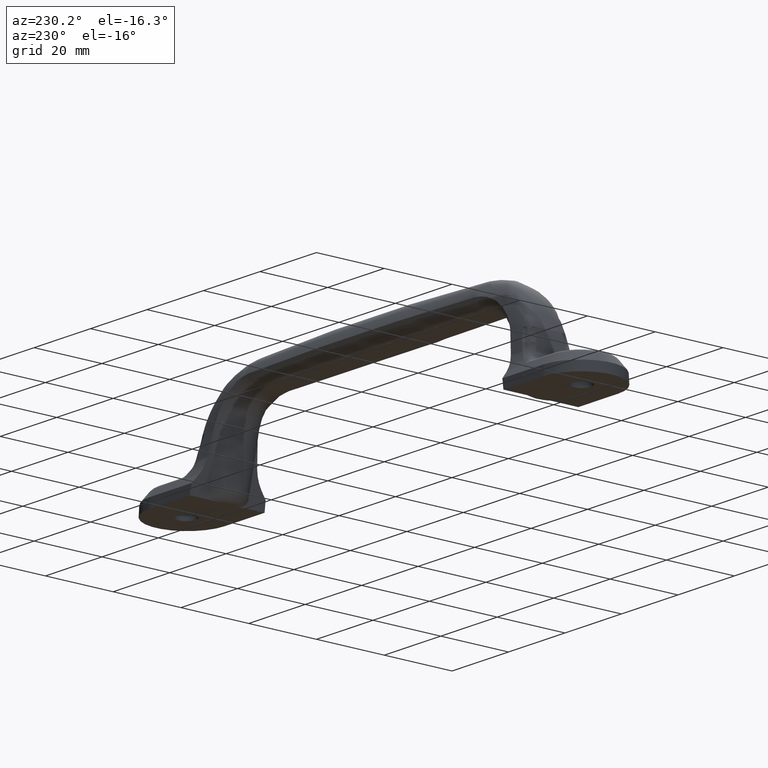
[diagram: clean part render]
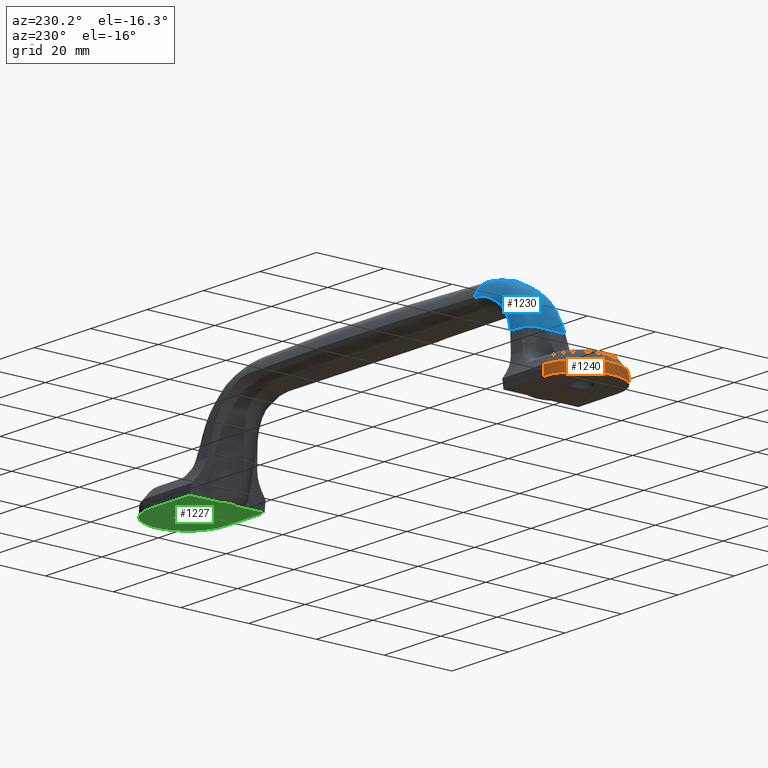
[diagram: same view with three faces highlighted in distinct colors, each labeled with its STEP entity id]
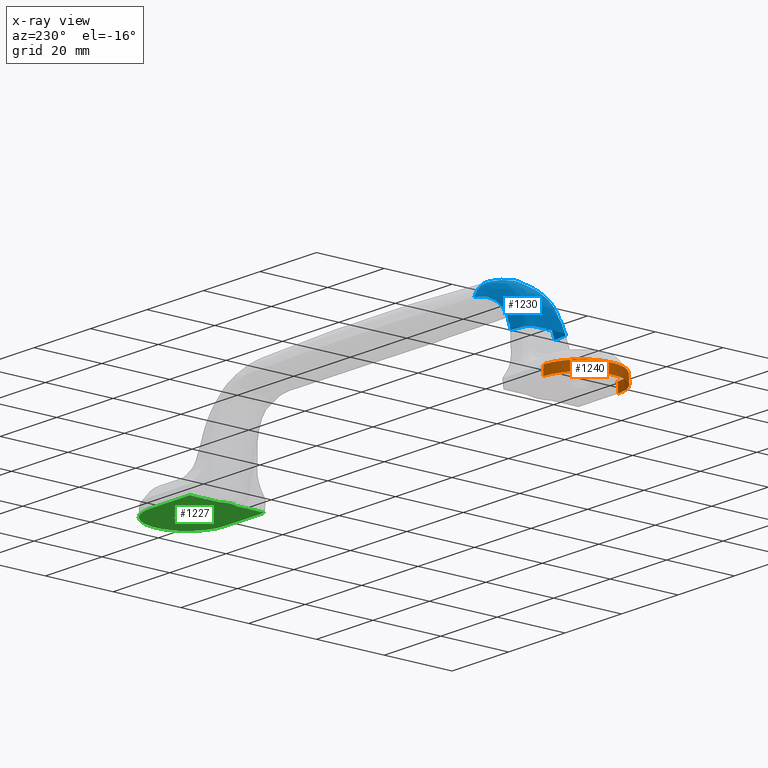
[diagram: x-ray of the same camera — body ghosted, the three highlighted faces saturated]
A machine part, auxiliary view with three faces highlighted in distinct colors.
The next image is the same camera in x-ray (body ghosted, the three faces saturated) — at least one of them is partly hidden behind the body in this view.
Their STEP definitions:

[orange] entity #1240 — the highlighted conical surface has half-angle 3 deg.
#21=CONICAL_SURFACE('',#1307,11.0351948760177,2.99999999999969);
#70=LINE('',#5444,#111);
#71=LINE('',#5446,#112);
#111=VECTOR('',#1437,2.82886280199663);
#112=VECTOR('',#1438,2.82886280199664);
#159=CIRCLE('',#1296,11.05);
#166=CIRCLE('',#1308,10.9019487601774);
#225=FACE_OUTER_BOUND('',#307,.T.);
#307=EDGE_LOOP('',(#1039,#1040,#1041,#1042));
#545=VERTEX_POINT('',#5159);
#546=VERTEX_POINT('',#5161);
#567=VERTEX_POINT('',#5443);
#568=VERTEX_POINT('',#5445);
#709=EDGE_CURVE('',#545,#546,#159,.T.);
#736=EDGE_CURVE('',#567,#546,#70,.T.);
#737=EDGE_CURVE('',#545,#568,#71,.T.);
#738=EDGE_CURVE('',#568,#567,#166,.T.);
#1039=ORIENTED_EDGE('',*,*,#736,.T.);
#1040=ORIENTED_EDGE('',*,*,#709,.F.);
#1041=ORIENTED_EDGE('',*,*,#737,.T.);
#1042=ORIENTED_EDGE('',*,*,#738,.T.);
#1240=ADVANCED_FACE('',(#225),#21,.T.);
#1296=AXIS2_PLACEMENT_3D('',#5162,#1407,#1408);
#1307=AXIS2_PLACEMENT_3D('',#5442,#1435,#1436);
#1308=AXIS2_PLACEMENT_3D('',#5447,#1439,#1440);
#1407=DIRECTION('center_axis',(0.,0.,-1.));
#1408=DIRECTION('ref_axis',(-4.82268825176536E-15,1.,0.));
#1435=DIRECTION('center_axis',(-1.09161801014799E-14,5.07292589788377E-15,
-1.));
#1436=DIRECTION('ref_axis',(-0.219512195121948,0.975609756097562,7.34543065435777E-15));
#1437=DIRECTION('',(0.,0.0523359562429452,-0.998629534754574));
#1438=DIRECTION('',(0.,0.0523359562429484,0.998629534754574));
#1439=DIRECTION('center_axis',(1.01837116376897E-16,0.,-1.));
#1440=DIRECTION('ref_axis',(-2.44409079304553E-15,1.,0.));
#5159=CARTESIAN_POINT('',(-69.6643585288094,49.0177836916921,0.));
#5161=CARTESIAN_POINT('',(-69.6643585288094,71.1177836916921,0.));
#5162=CARTESIAN_POINT('Origin',(-69.6643585288094,60.0677836916921,-7.9096954899676E-13));
#5442=CARTESIAN_POINT('Origin',(-69.6643585288094,60.0677836916921,0.28249859438416));
#5443=CARTESIAN_POINT('',(-69.6643585288094,70.9697324518695,2.82498594384241));
#5444=CARTESIAN_POINT('',(-69.6643585288094,70.9697324518695,2.82498594384241));
#5445=CARTESIAN_POINT('',(-69.6643585288094,49.1658349315147,2.82498594384242));
#5446=CARTESIAN_POINT('',(-69.6643585288094,49.0177836916921,0.));
#5447=CARTESIAN_POINT('Origin',(-69.6643585288094,60.0677836916921,2.82498594384241));

[blue] entity #1230 — the highlighted face is a freeform B-spline surface patch.
#215=FACE_OUTER_BOUND('',#293,.T.);
#293=EDGE_LOOP('',(#984,#985,#986,#987,#988,#989,#990,#991,#992,#993));
#350=B_SPLINE_CURVE_WITH_KNOTS('',3,(#2504,#2505,#2506,#2507,#2508,#2509,
#2510,#2511,#2512,#2513,#2514,#2515,#2516,#2517,#2518,#2519,#2520,#2521,
#2522,#2523,#2524,#2525,#2526,#2527,#2528,#2529,#2530,#2531,#2532,#2533,
#2534,#2535,#2536,#2537,#2538,#2539,#2540,#2541,#2542,#2543,#2544,#2545,
#2546,#2547,#2548,#2549,#2550,#2551,#2552,#2553,#2554,#2555,#2556,#2557,
#2558,#2559,#2560,#2561,#2562,#2563,#2564,#2565,#2566,#2567,#2568,#2569,
#2570,#2571,#2572,#2573,#2574,#2575,#2576,#2577,#2578,#2579,#2580,#2581,
#2582,#2583,#2584,#2585,#2586,#2587,#2588,#2589,#2590,#2591,#2592,#2593,
#2594),.UNSPECIFIED.,.F.,.F.,(4,3,3,3,3,3,3,3,3,3,3,3,3,3,3,3,3,3,3,3,3,
3,3,3,3,3,3,3,3,3,4),(-1.44370021398789,-1.26466342048277,-1.25451719783154,
-1.2421059356418,-1.17421645538692,-1.15912800481853,-1.15153691434943,
-1.08376949029108,-1.06713364534011,-1.06342626409933,-0.98785778160469,
-0.967176529007807,-0.910069343056486,-0.870912515835616,-0.752957486636548,
-0.721981629907689,-0.691957731062429,-0.573735026135915,-0.535103499457519,
-0.477364212774784,-0.457442208182294,-0.381017529608391,-0.378239689340944,
-0.360193769524304,-0.293751732951284,-0.285212509527465,-0.269746804428457,
-0.202862300105507,-0.189697550767016,-0.17929983933261,-0.000263258753689663),
 .UNSPECIFIED.);
#404=B_SPLINE_CURVE_WITH_KNOTS('',3,(#4976,#4977,#4978,#4979,#4980,#4981,
#4982,#4983,#4984,#4985,#4986,#4987,#4988,#4989,#4990,#4991,#4992,#4993),
 .UNSPECIFIED.,.F.,.F.,(4,2,2,2,2,2,2,2,4),(0.000379657717695648,0.397003810956207,
0.793631319406672,0.845008980355125,1.04315724688103,1.19160643271886,1.21927283278677,
1.32339306012027,1.61555750483882),.UNSPECIFIED.);
#405=B_SPLINE_CURVE_WITH_KNOTS('',3,(#4995,#4996,#4997,#4998),
 .UNSPECIFIED.,.F.,.F.,(4,4),(0.,0.999381949647157),.UNSPECIFIED.);
#406=B_SPLINE_CURVE_WITH_KNOTS('',3,(#5000,#5001,#5002,#5003),
 .UNSPECIFIED.,.F.,.F.,(4,4),(0.,0.994908346675726),.UNSPECIFIED.);
#407=B_SPLINE_CURVE_WITH_KNOTS('',3,(#5005,#5006,#5007,#5008,#5009,#5010,
#5011,#5012,#5013,#5014,#5015,#5016,#5017,#5018,#5019,#5020),
 .UNSPECIFIED.,.F.,.F.,(4,3,3,3,3,4),(1.28434806531561E-5,0.122025566449732,
0.5,0.516183494753885,0.898499043965891,1.),.UNSPECIFIED.);
#408=B_SPLINE_CURVE_WITH_KNOTS('',3,(#5022,#5023,#5024,#5025,#5026,#5027,
#5028,#5029,#5030,#5031,#5032,#5033,#5034,#5035,#5036,#5037),
 .UNSPECIFIED.,.F.,.F.,(4,3,3,3,3,4),(0.,0.128026603062362,0.499840964615835,
0.577241752379509,0.87169715991271,0.99999930779065),.UNSPECIFIED.);
#409=B_SPLINE_CURVE_WITH_KNOTS('',3,(#5039,#5040,#5041,#5042,#5043,#5044,
#5045,#5046,#5047,#5048,#5049,#5050,#5051,#5052,#5053,#5054),
 .UNSPECIFIED.,.F.,.F.,(4,3,3,3,3,4),(1.08871831038694E-6,0.105107203243985,
0.47665747701046,0.500000544349177,0.867528374584574,0.999981670196751),
 .UNSPECIFIED.);
#410=B_SPLINE_CURVE_WITH_KNOTS('',3,(#5056,#5057,#5058,#5059),
 .UNSPECIFIED.,.F.,.F.,(4,4),(0.00182041970305296,1.),.UNSPECIFIED.);
#411=B_SPLINE_CURVE_WITH_KNOTS('',3,(#5061,#5062,#5063,#5064,#5065,#5066,
#5067),.UNSPECIFIED.,.F.,.F.,(4,3,4),(5.56732423876787E-5,0.817674910935459,
1.),.UNSPECIFIED.);
#412=B_SPLINE_CURVE_WITH_KNOTS('',3,(#5068,#5069,#5070,#5071,#5072,#5073,
#5074,#5075,#5076,#5077,#5078,#5079,#5080,#5081,#5082,#5083,#5084,#5085,
#5086,#5087,#5088,#5089),.UNSPECIFIED.,.F.,.F.,(4,2,2,2,2,2,2,2,2,2,4),
(0.0231982437370047,0.412642088481803,0.440127194821261,0.501566139143538,
0.571577591169969,0.758403913209703,0.859207794421801,0.881253126262387,
0.925000702857521,1.25239639077821,1.57965931332014),.UNSPECIFIED.);
#460=VERTEX_POINT('',#1491);
#472=VERTEX_POINT('',#2218);
#530=VERTEX_POINT('',#4975);
#531=VERTEX_POINT('',#4994);
#532=VERTEX_POINT('',#4999);
#533=VERTEX_POINT('',#5004);
#534=VERTEX_POINT('',#5021);
#535=VERTEX_POINT('',#5038);
#536=VERTEX_POINT('',#5055);
#537=VERTEX_POINT('',#5060);
#606=EDGE_CURVE('',#472,#460,#350,.T.);
#693=EDGE_CURVE('',#530,#460,#404,.T.);
#694=EDGE_CURVE('',#531,#530,#405,.T.);
#695=EDGE_CURVE('',#532,#531,#406,.T.);
#696=EDGE_CURVE('',#533,#532,#407,.T.);
#697=EDGE_CURVE('',#534,#533,#408,.T.);
#698=EDGE_CURVE('',#535,#534,#409,.T.);
#699=EDGE_CURVE('',#536,#535,#410,.T.);
#700=EDGE_CURVE('',#537,#536,#411,.T.);
#701=EDGE_CURVE('',#472,#537,#412,.T.);
#984=ORIENTED_EDGE('',*,*,#606,.T.);
#985=ORIENTED_EDGE('',*,*,#693,.F.);
#986=ORIENTED_EDGE('',*,*,#694,.F.);
#987=ORIENTED_EDGE('',*,*,#695,.F.);
#988=ORIENTED_EDGE('',*,*,#696,.F.);
#989=ORIENTED_EDGE('',*,*,#697,.F.);
#990=ORIENTED_EDGE('',*,*,#698,.F.);
#991=ORIENTED_EDGE('',*,*,#699,.F.);
#992=ORIENTED_EDGE('',*,*,#700,.F.);
#993=ORIENTED_EDGE('',*,*,#701,.F.);
#1180=B_SPLINE_SURFACE_WITH_KNOTS('',3,3,((#4494,#4495,#4496,#4497,#4498,
#4499,#4500,#4501,#4502,#4503,#4504,#4505,#4506,#4507,#4508,#4509,#4510,
#4511,#4512,#4513,#4514,#4515,#4516,#4517,#4518,#4519,#4520,#4521,#4522,
#4523,#4524,#4525,#4526,#4527,#4528,#4529,#4530),(#4531,#4532,#4533,#4534,
#4535,#4536,#4537,#4538,#4539,#4540,#4541,#4542,#4543,#4544,#4545,#4546,
#4547,#4548,#4549,#4550,#4551,#4552,#4553,#4554,#4555,#4556,#4557,#4558,
#4559,#4560,#4561,#4562,#4563,#4564,#4565,#4566,#4567),(#4568,#4569,#4570,
#4571,#4572,#4573,#4574,#4575,#4576,#4577,#4578,#4579,#4580,#4581,#4582,
#4583,#4584,#4585,#4586,#4587,#4588,#4589,#4590,#4591,#4592,#4593,#4594,
#4595,#4596,#4597,#4598,#4599,#4600,#4601,#4602,#4603,#4604),(#4605,#4606,
#4607,#4608,#4609,#4610,#4611,#4612,#4613,#4614,#4615,#4616,#4617,#4618,
#4619,#4620,#4621,#4622,#4623,#4624,#4625,#4626,#4627,#4628,#4629,#4630,
#4631,#4632,#4633,#4634,#4635,#4636,#4637,#4638,#4639,#4640,#4641),(#4642,
#4643,#4644,#4645,#4646,#4647,#4648,#4649,#4650,#4651,#4652,#4653,#4654,
#4655,#4656,#4657,#4658,#4659,#4660,#4661,#4662,#4663,#4664,#4665,#4666,
#4667,#4668,#4669,#4670,#4671,#4672,#4673,#4674,#4675,#4676,#4677,#4678),
(#4679,#4680,#4681,#4682,#4683,#4684,#4685,#4686,#4687,#4688,#4689,#4690,
#4691,#4692,#4693,#4694,#4695,#4696,#4697,#4698,#4699,#4700,#4701,#4702,
#4703,#4704,#4705,#4706,#4707,#4708,#4709,#4710,#4711,#4712,#4713,#4714,
#4715),(#4716,#4717,#4718,#4719,#4720,#4721,#4722,#4723,#4724,#4725,#4726,
#4727,#4728,#4729,#4730,#4731,#4732,#4733,#4734,#4735,#4736,#4737,#4738,
#4739,#4740,#4741,#4742,#4743,#4744,#4745,#4746,#4747,#4748,#4749,#4750,
#4751,#4752),(#4753,#4754,#4755,#4756,#4757,#4758,#4759,#4760,#4761,#4762,
#4763,#4764,#4765,#4766,#4767,#4768,#4769,#4770,#4771,#4772,#4773,#4774,
#4775,#4776,#4777,#4778,#4779,#4780,#4781,#4782,#4783,#4784,#4785,#4786,
#4787,#4788,#4789),(#4790,#4791,#4792,#4793,#4794,#4795,#4796,#4797,#4798,
#4799,#4800,#4801,#4802,#4803,#4804,#4805,#4806,#4807,#4808,#4809,#4810,
#4811,#4812,#4813,#4814,#4815,#4816,#4817,#4818,#4819,#4820,#4821,#4822,
#4823,#4824,#4825,#4826),(#4827,#4828,#4829,#4830,#4831,#4832,#4833,#4834,
#4835,#4836,#4837,#4838,#4839,#4840,#4841,#4842,#4843,#4844,#4845,#4846,
#4847,#4848,#4849,#4850,#4851,#4852,#4853,#4854,#4855,#4856,#4857,#4858,
#4859,#4860,#4861,#4862,#4863),(#4864,#4865,#4866,#4867,#4868,#4869,#4870,
#4871,#4872,#4873,#4874,#4875,#4876,#4877,#4878,#4879,#4880,#4881,#4882,
#4883,#4884,#4885,#4886,#4887,#4888,#4889,#4890,#4891,#4892,#4893,#4894,
#4895,#4896,#4897,#4898,#4899,#4900),(#4901,#4902,#4903,#4904,#4905,#4906,
#4907,#4908,#4909,#4910,#4911,#4912,#4913,#4914,#4915,#4916,#4917,#4918,
#4919,#4920,#4921,#4922,#4923,#4924,#4925,#4926,#4927,#4928,#4929,#4930,
#4931,#4932,#4933,#4934,#4935,#4936,#4937),(#4938,#4939,#4940,#4941,#4942,
#4943,#4944,#4945,#4946,#4947,#4948,#4949,#4950,#4951,#4952,#4953,#4954,
#4955,#4956,#4957,#4958,#4959,#4960,#4961,#4962,#4963,#4964,#4965,#4966,
#4967,#4968,#4969,#4970,#4971,#4972,#4973,#4974)),.UNSPECIFIED.,.F.,.F.,
 .F.,(4,3,3,3,4),(4,3,3,3,3,3,3,3,3,3,3,3,4),(-5.30205648906934E-6,0.25,
0.5,0.75,1.),(-1.68670465282649E-6,0.125,0.1875,0.25,0.3125,0.375,0.5,0.625,
0.6875,0.75,0.8125,0.875,1.00000168596866),.UNSPECIFIED.);
#1230=ADVANCED_FACE('',(#215),#1180,.F.);
#1491=CARTESIAN_POINT('',(-40.000000015354,66.7435429460592,26.0890724851359));
#2218=CARTESIAN_POINT('',(-40.0000000328284,53.391963930679,26.0888706088555));
#2504=CARTESIAN_POINT('Ctrl Pts',(-40.,53.3919639266323,26.0888706100543));
#2505=CARTESIAN_POINT('Ctrl Pts',(-40.,53.5901365530062,26.7578272774817));
#2506=CARTESIAN_POINT('Ctrl Pts',(-40.0000000000046,53.8897053579553,27.3969271357917));
#2507=CARTESIAN_POINT('Ctrl Pts',(-40.0000000000054,54.2768604178932,27.9772112776857));
#2508=CARTESIAN_POINT('Ctrl Pts',(-40.0000000000054,54.2988009439816,28.0100966527495));
#2509=CARTESIAN_POINT('Ctrl Pts',(-40.0000000000054,54.3210230036573,28.0427935253999));
#2510=CARTESIAN_POINT('Ctrl Pts',(-40.0000000000054,54.3435233947199,28.0752955886571));
#2511=CARTESIAN_POINT('Ctrl Pts',(-40.0000000000054,54.3710467659733,28.1150534022453));
#2512=CARTESIAN_POINT('Ctrl Pts',(-40.0000000000054,54.3989859650305,28.154520764194));
#2513=CARTESIAN_POINT('Ctrl Pts',(-40.0000000000055,54.4273337379547,28.1936896889359));
#2514=CARTESIAN_POINT('Ctrl Pts',(-40.0000000000055,54.5823957728055,28.4079433161836));
#2515=CARTESIAN_POINT('Ctrl Pts',(-40.000000000006,54.74969858272,28.6132566722467));
#2516=CARTESIAN_POINT('Ctrl Pts',(-40.0000000000061,54.9280330311987,28.8083989510367));
#2517=CARTESIAN_POINT('Ctrl Pts',(-40.0000000000061,54.9676678980501,28.8517693615373));
#2518=CARTESIAN_POINT('Ctrl Pts',(-40.0000000000062,55.0078469760107,28.8946378622047));
#2519=CARTESIAN_POINT('Ctrl Pts',(-40.0000000000062,55.0485563595734,28.9369912403526));
#2520=CARTESIAN_POINT('Ctrl Pts',(-40.0000000000062,55.0690374959343,28.9582994803031));
#2521=CARTESIAN_POINT('Ctrl Pts',(-40.0000000000062,55.0896530862389,28.9794773025163));
#2522=CARTESIAN_POINT('Ctrl Pts',(-40.0000000000062,55.1104011492109,29.0005225979029));
#2523=CARTESIAN_POINT('Ctrl Pts',(-40.0000000000062,55.2956239162873,29.1883988276353));
#2524=CARTESIAN_POINT('Ctrl Pts',(-40.0000000000066,55.4914155901646,29.3657255106837));
#2525=CARTESIAN_POINT('Ctrl Pts',(-40.0000000000067,55.6965786163231,29.5312839312931));
#2526=CARTESIAN_POINT('Ctrl Pts',(-40.0000000000068,55.7469429372379,29.57192593966));
#2527=CARTESIAN_POINT('Ctrl Pts',(-40.0000000000068,55.7978780935506,29.6118632292596));
#2528=CARTESIAN_POINT('Ctrl Pts',(-40.0000000000068,55.8493376549816,29.6510563239898));
#2529=CARTESIAN_POINT('Ctrl Pts',(-40.0000000000068,55.8608056755883,29.6597907011495));
#2530=CARTESIAN_POINT('Ctrl Pts',(-40.0000000000068,55.8722998968697,29.6684883861118));
#2531=CARTESIAN_POINT('Ctrl Pts',(-40.0000000000068,55.8838201175576,29.6771488131517));
#2532=CARTESIAN_POINT('Ctrl Pts',(-40.0000000000066,56.11863966776,29.8536764715335));
#2533=CARTESIAN_POINT('Ctrl Pts',(-40.0000000000058,56.3642462683382,30.0148590149211));
#2534=CARTESIAN_POINT('Ctrl Pts',(-40.0000000000057,56.6189542156624,30.1600315095781));
#2535=CARTESIAN_POINT('Ctrl Pts',(-40.0000000000056,56.6886615754393,30.1997616845533));
#2536=CARTESIAN_POINT('Ctrl Pts',(-40.0000000000056,56.7590530087051,30.2382905554575));
#2537=CARTESIAN_POINT('Ctrl Pts',(-40.0000000000056,56.8300941377731,30.2755981050489));
#2538=CARTESIAN_POINT('Ctrl Pts',(-40.0000000000055,57.0262601557098,30.3786155195854));
#2539=CARTESIAN_POINT('Ctrl Pts',(-40.0000000000053,57.2273897975687,30.4723387680696));
#2540=CARTESIAN_POINT('Ctrl Pts',(-40.0000000000053,57.4327919289685,30.556364170744));
#2541=CARTESIAN_POINT('Ctrl Pts',(-40.0000000000052,57.5736305228519,30.6139780790442));
#2542=CARTESIAN_POINT('Ctrl Pts',(-40.0000000000052,57.7166775450554,30.6670959286636));
#2543=CARTESIAN_POINT('Ctrl Pts',(-40.0000000000052,57.8611009643677,30.7153350775637));
#2544=CARTESIAN_POINT('Ctrl Pts',(-40.0000000000052,58.2961583949892,30.8606494613095));
#2545=CARTESIAN_POINT('Ctrl Pts',(-40.0000000000054,58.7560560412728,30.968089380066));
#2546=CARTESIAN_POINT('Ctrl Pts',(-40.0000000000055,59.2591376868079,31.0269432011877));
#2547=CARTESIAN_POINT('Ctrl Pts',(-40.0000000000055,59.3912506207017,31.0423986467367));
#2548=CARTESIAN_POINT('Ctrl Pts',(-40.0000000000055,59.5263416361631,31.0545034678803));
#2549=CARTESIAN_POINT('Ctrl Pts',(-40.0000000000056,59.6633040942005,31.0624602789912));
#2550=CARTESIAN_POINT('Ctrl Pts',(-40.0000000000056,59.7960573872477,31.0701725593655));
#2551=CARTESIAN_POINT('Ctrl Pts',(-40.0000000000056,59.9306723244924,31.0744344527089));
#2552=CARTESIAN_POINT('Ctrl Pts',(-40.0000000000057,60.06781828632,31.0743877728217));
#2553=CARTESIAN_POINT('Ctrl Pts',(-40.0000000000062,60.6078469701549,31.0742039651636));
#2554=CARTESIAN_POINT('Ctrl Pts',(-40.0000000000081,61.1871188139279,31.0072163700006));
#2555=CARTESIAN_POINT('Ctrl Pts',(-40.0000000000087,61.7392984309186,30.870621046018));
#2556=CARTESIAN_POINT('Ctrl Pts',(-40.0000000000089,61.9197336664201,30.8259859151787));
#2557=CARTESIAN_POINT('Ctrl Pts',(-40.0000000000091,62.0982677224201,30.7743007128354));
#2558=CARTESIAN_POINT('Ctrl Pts',(-40.0000000000092,62.2744675730362,30.7154322903309));
#2559=CARTESIAN_POINT('Ctrl Pts',(-40.0000000000095,62.5378186379028,30.6274466212207));
#2560=CARTESIAN_POINT('Ctrl Pts',(-40.0000000000103,62.7959642223478,30.5235676715103));
#2561=CARTESIAN_POINT('Ctrl Pts',(-40.0000000000105,63.0475973640082,30.4043954382455));
#2562=CARTESIAN_POINT('Ctrl Pts',(-40.0000000000106,63.1344192991548,30.3632769916072));
#2563=CARTESIAN_POINT('Ctrl Pts',(-40.0000000000107,63.2204309452924,30.3203534767426));
#2564=CARTESIAN_POINT('Ctrl Pts',(-40.0000000000108,63.3056932125908,30.2755762790096));
#2565=CARTESIAN_POINT('Ctrl Pts',(-40.0000000000113,63.6327758283242,30.1038022525409));
#2566=CARTESIAN_POINT('Ctrl Pts',(-40.0000000000137,63.940548547102,29.9085935856205));
#2567=CARTESIAN_POINT('Ctrl Pts',(-40.0000000000141,64.2210012804815,29.7001342188947));
#2568=CARTESIAN_POINT('Ctrl Pts',(-40.0000000000142,64.2311950151551,29.6925572577112));
#2569=CARTESIAN_POINT('Ctrl Pts',(-40.0000000000142,64.241366325677,29.6849552846069));
#2570=CARTESIAN_POINT('Ctrl Pts',(-40.0000000000141,64.2515006051919,29.6773364460094));
#2571=CARTESIAN_POINT('Ctrl Pts',(-40.0000000000141,64.3173367865112,29.627841537307));
#2572=CARTESIAN_POINT('Ctrl Pts',(-40.0000000000139,64.3817976414622,29.5775360128102));
#2573=CARTESIAN_POINT('Ctrl Pts',(-40.0000000000137,64.4448908745504,29.52650358311));
#2574=CARTESIAN_POINT('Ctrl Pts',(-40.0000000000129,64.6771895294789,29.3386107743754));
#2575=CARTESIAN_POINT('Ctrl Pts',(-40.0000000000096,64.8910018703791,29.1408657204519));
#2576=CARTESIAN_POINT('Ctrl Pts',(-40.000000000009,65.0868255788591,28.9371325242608));
#2577=CARTESIAN_POINT('Ctrl Pts',(-40.0000000000089,65.1119931156271,28.910948449075));
#2578=CARTESIAN_POINT('Ctrl Pts',(-40.0000000000089,65.1368632955321,28.8846657143189));
#2579=CARTESIAN_POINT('Ctrl Pts',(-40.0000000000089,65.1614380421208,28.8582916890806));
#2580=CARTESIAN_POINT('Ctrl Pts',(-40.0000000000088,65.2059462795518,28.8105247111759));
#2581=CARTESIAN_POINT('Ctrl Pts',(-40.0000000000088,65.2494864158594,28.7624572702244));
#2582=CARTESIAN_POINT('Ctrl Pts',(-40.0000000000087,65.292058306436,28.714139745623));
#2583=CARTESIAN_POINT('Ctrl Pts',(-40.0000000000083,65.4761688776049,28.505181042325));
#2584=CARTESIAN_POINT('Ctrl Pts',(-40.0000000000069,65.6420083549205,28.2919084736208));
#2585=CARTESIAN_POINT('Ctrl Pts',(-40.0000000000066,65.7918861844952,28.0754226401635));
#2586=CARTESIAN_POINT('Ctrl Pts',(-40.0000000000065,65.8213863516523,28.0328121467219));
#2587=CARTESIAN_POINT('Ctrl Pts',(-40.0000000000065,65.8502532666592,27.9900876258831));
#2588=CARTESIAN_POINT('Ctrl Pts',(-40.0000000000065,65.8785036536855,27.9472636962789));
#2589=CARTESIAN_POINT('Ctrl Pts',(-40.0000000000065,65.900816222247,27.9134407307926));
#2590=CARTESIAN_POINT('Ctrl Pts',(-40.0000000000065,65.9227428175446,27.8795568117644));
#2591=CARTESIAN_POINT('Ctrl Pts',(-40.0000000000064,65.9442897977415,27.8456195836975));
#2592=CARTESIAN_POINT('Ctrl Pts',(-40.0000000000055,66.3153039079708,27.2612597170335));
#2593=CARTESIAN_POINT('Ctrl Pts',(-40.,66.5739695424899,26.6614209627845));
#2594=CARTESIAN_POINT('Ctrl Pts',(-40.,66.7435429479518,26.0890724856966));
#4494=CARTESIAN_POINT('Ctrl Pts',(-39.7683716616708,53.3716368589935,26.0704224614619));
#4495=CARTESIAN_POINT('Ctrl Pts',(-39.7685487574733,53.5818275299873,26.7877963195905));
#4496=CARTESIAN_POINT('Ctrl Pts',(-39.7687140717696,53.9084344898124,27.4713058069426));
#4497=CARTESIAN_POINT('Ctrl Pts',(-39.768866120566,54.3344863090731,28.0854941321717));
#4498=CARTESIAN_POINT('Ctrl Pts',(-39.7689421439384,54.547509344248,28.3925841510251));
#4499=CARTESIAN_POINT('Ctrl Pts',(-39.769015131888,54.785468710618,28.6824687763125));
#4500=CARTESIAN_POINT('Ctrl Pts',(-39.7690786435167,55.0449625157352,28.9515908557046));
#4501=CARTESIAN_POINT('Ctrl Pts',(-39.7691421551454,55.3044563208522,29.2207129350965));
#4502=CARTESIAN_POINT('Ctrl Pts',(-39.7692095150257,55.5854835938917,29.4690705080384));
#4503=CARTESIAN_POINT('Ctrl Pts',(-39.7692612601076,55.8846168326531,29.6931319710033));
#4504=CARTESIAN_POINT('Ctrl Pts',(-39.7693130051895,56.1837500714144,29.9171934339681));
#4505=CARTESIAN_POINT('Ctrl Pts',(-39.769368477813,56.5011079789817,30.1170464926288));
#4506=CARTESIAN_POINT('Ctrl Pts',(-39.7694130018374,56.8323380887093,30.2903972701242));
#4507=CARTESIAN_POINT('Ctrl Pts',(-39.7694575258618,57.1635681984368,30.4637480476195));
#4508=CARTESIAN_POINT('Ctrl Pts',(-39.7694944763611,57.5086690128382,30.6105955652366));
#4509=CARTESIAN_POINT('Ctrl Pts',(-39.7695248644452,57.8632721200192,30.7286762935071));
#4510=CARTESIAN_POINT('Ctrl Pts',(-39.7695856406138,58.5724783343812,30.964837750048));
#4511=CARTESIAN_POINT('Ctrl Pts',(-39.7696140564573,59.3202568060726,31.0860828297621));
#4512=CARTESIAN_POINT('Ctrl Pts',(-39.7696139862228,60.067745683585,31.0860868680366));
#4513=CARTESIAN_POINT('Ctrl Pts',(-39.7696139159884,60.8152345610974,31.0860909063113));
#4514=CARTESIAN_POINT('Ctrl Pts',(-39.7695853138396,61.5630168557589,30.9648539049986));
#4515=CARTESIAN_POINT('Ctrl Pts',(-39.7695246090244,62.2722293602344,30.7286982379751));
#4516=CARTESIAN_POINT('Ctrl Pts',(-39.7694942566167,62.6268356124723,30.6106204044633));
#4517=CARTESIAN_POINT('Ctrl Pts',(-39.769456168106,62.9719401993631,30.4637752489109));
#4518=CARTESIAN_POINT('Ctrl Pts',(-39.7694120743809,63.3031744033501,30.2904260373927));
#4519=CARTESIAN_POINT('Ctrl Pts',(-39.7693679806559,63.6344086073371,30.1170768258744));
#4520=CARTESIAN_POINT('Ctrl Pts',(-39.7693163054699,63.9517708664098,29.91722449173));
#4521=CARTESIAN_POINT('Ctrl Pts',(-39.7692623012916,64.250908703854,29.6931632283192));
#4522=CARTESIAN_POINT('Ctrl Pts',(-39.7692082971133,64.5500465412982,29.4691019649085));
#4523=CARTESIAN_POINT('Ctrl Pts',(-39.7691440334323,64.8310783098142,29.2207435959169));
#4524=CARTESIAN_POINT('Ctrl Pts',(-39.7690780308278,65.0905766063038,28.9516201868563));
#4525=CARTESIAN_POINT('Ctrl Pts',(-39.7690120282234,65.3500749027933,28.6824967777957));
#4526=CARTESIAN_POINT('Ctrl Pts',(-39.7689407571831,65.5880384305133,28.3926099053682));
#4527=CARTESIAN_POINT('Ctrl Pts',(-39.7688651072421,65.801065214822,28.0855170704837));
#4528=CARTESIAN_POINT('Ctrl Pts',(-39.7687138053194,66.2271245299432,27.4713231167324));
#4529=CARTESIAN_POINT('Ctrl Pts',(-39.7685478270489,66.5537372312783,26.7878054251399));
#4530=CARTESIAN_POINT('Ctrl Pts',(-39.768371230454,66.7639305436654,26.0704224512521));
#4531=CARTESIAN_POINT('Ctrl Pts',(-41.2618212239999,53.461819776338,26.0644368495811));
#4532=CARTESIAN_POINT('Ctrl Pts',(-41.3723903529183,53.6751175965082,26.7710764603613));
#4533=CARTESIAN_POINT('Ctrl Pts',(-41.4790287528721,53.9987283327947,27.4310691990184));
#4534=CARTESIAN_POINT('Ctrl Pts',(-41.5818550764931,54.4057453829456,28.0160254344731));
#4535=CARTESIAN_POINT('Ctrl Pts',(-41.6332675445624,54.6092511619878,28.3084996056602));
#4536=CARTESIAN_POINT('Ctrl Pts',(-41.6845351561407,54.8321135121599,28.5808497939678));
#4537=CARTESIAN_POINT('Ctrl Pts',(-41.7329519867519,55.0762884943844,28.8369395069416));
#4538=CARTESIAN_POINT('Ctrl Pts',(-41.7813688173632,55.320463476609,29.0930292199154));
#4539=CARTESIAN_POINT('Ctrl Pts',(-41.826025789486,55.5880825845179,29.3348952944312));
#4540=CARTESIAN_POINT('Ctrl Pts',(-41.8614104435928,55.8785147309425,29.5574017724472));
#4541=CARTESIAN_POINT('Ctrl Pts',(-41.8967950976997,56.1689468773671,29.7799082504633));
#4542=CARTESIAN_POINT('Ctrl Pts',(-41.9229318706352,56.4823975713395,29.9831968959533));
#4543=CARTESIAN_POINT('Ctrl Pts',(-41.9358161105913,56.8123802949987,30.1609307306148));
#4544=CARTESIAN_POINT('Ctrl Pts',(-41.9487003505474,57.1423630186578,30.3386645652764));
#4545=CARTESIAN_POINT('Ctrl Pts',(-41.9514182938695,57.4885869154431,30.4906994710992));
#4546=CARTESIAN_POINT('Ctrl Pts',(-41.9560563629801,57.8447794106529,30.6128395570645));
#4547=CARTESIAN_POINT('Ctrl Pts',(-41.9653325012015,58.5571644010724,30.8571197289953));
#4548=CARTESIAN_POINT('Ctrl Pts',(-41.9700086026081,59.3126379420953,30.9832616750507));
#4549=CARTESIAN_POINT('Ctrl Pts',(-41.9700082306512,60.0677450878781,30.9832644159517));
#4550=CARTESIAN_POINT('Ctrl Pts',(-41.9700078586942,60.822852233661,30.9832671568526));
#4551=CARTESIAN_POINT('Ctrl Pts',(-41.9653309694533,61.5783261287496,30.8571307336521));
#4552=CARTESIAN_POINT('Ctrl Pts',(-41.956055450381,62.2907208091914,30.6128569002552));
#4553=CARTESIAN_POINT('Ctrl Pts',(-41.9514176908449,62.6469181494122,30.4907199835568));
#4554=CARTESIAN_POINT('Ctrl Pts',(-41.9486963810141,62.9931102170754,30.3386787964057));
#4555=CARTESIAN_POINT('Ctrl Pts',(-41.9358110549154,63.3231178413518,30.1609463341632));
#4556=CARTESIAN_POINT('Ctrl Pts',(-41.9229257288165,63.6531254656281,29.9832138719207));
#4557=CARTESIAN_POINT('Ctrl Pts',(-41.8967963516264,63.9666559713774,29.7799631062644));
#4558=CARTESIAN_POINT('Ctrl Pts',(-41.8614132515222,64.2570382172003,29.5574392178354));
#4559=CARTESIAN_POINT('Ctrl Pts',(-41.826030151418,64.5474204630233,29.3349153294063));
#4560=CARTESIAN_POINT('Ctrl Pts',(-41.781354537702,64.8150223215521,29.0931596752512));
#4561=CARTESIAN_POINT('Ctrl Pts',(-41.7329401404664,65.0592148664181,28.8369906914869));
#4562=CARTESIAN_POINT('Ctrl Pts',(-41.6845257432307,65.3034074112841,28.5808217077227));
#4563=CARTESIAN_POINT('Ctrl Pts',(-41.6332579479993,65.5262620890407,28.3085320269778));
#4564=CARTESIAN_POINT('Ctrl Pts',(-41.5818480468147,65.7297858220396,28.016047518355));
#4565=CARTESIAN_POINT('Ctrl Pts',(-41.4790268576376,66.1368387781914,27.4310706111942));
#4566=CARTESIAN_POINT('Ctrl Pts',(-41.3723860859306,66.4604323932218,26.7710880328293));
#4567=CARTESIAN_POINT('Ctrl Pts',(-41.2618193175498,66.6737420725512,26.0644341871096));
#4568=CARTESIAN_POINT('Ctrl Pts',(-42.7474304661457,53.5580055333082,25.8120842374912));
#4569=CARTESIAN_POINT('Ctrl Pts',(-42.9649102441176,53.7738411152646,26.50590426398));
#4570=CARTESIAN_POINT('Ctrl Pts',(-43.1761466401574,54.0888195516359,27.1450900536631));
#4571=CARTESIAN_POINT('Ctrl Pts',(-43.3800622890817,54.4722903578458,27.7063244105564));
#4572=CARTESIAN_POINT('Ctrl Pts',(-43.4820187377805,54.6640231737777,27.9869378025078));
#4573=CARTESIAN_POINT('Ctrl Pts',(-43.5840260422058,54.8706777891673,28.2464843612269));
#4574=CARTESIAN_POINT('Ctrl Pts',(-43.6782989155575,55.0949651128975,28.4911068286489));
#4575=CARTESIAN_POINT('Ctrl Pts',(-43.7725717889094,55.3192524366278,28.7357292960709));
#4576=CARTESIAN_POINT('Ctrl Pts',(-43.8610161421912,55.5712353383769,28.9702293605513));
#4577=CARTESIAN_POINT('Ctrl Pts',(-43.9335251881387,55.8529711830109,29.1887412534403));
#4578=CARTESIAN_POINT('Ctrl Pts',(-44.0060342340861,56.1347070276447,29.4072531463291));
#4579=CARTESIAN_POINT('Ctrl Pts',(-44.0626825197437,56.4465193311514,29.6099949596071));
#4580=CARTESIAN_POINT('Ctrl Pts',(-44.0907458564141,56.7789475488803,29.7873454914277));
#4581=CARTESIAN_POINT('Ctrl Pts',(-44.1188091930845,57.1113757666092,29.9646960232483));
#4582=CARTESIAN_POINT('Ctrl Pts',(-44.1219154087555,57.4629534233617,30.1165041323379));
#4583=CARTESIAN_POINT('Ctrl Pts',(-44.1273946302912,57.8224592843559,30.2380706739404));
#4584=CARTESIAN_POINT('Ctrl Pts',(-44.1383530733626,58.5414710063444,30.4812037571454));
#4585=CARTESIAN_POINT('Ctrl Pts',(-44.1449371149893,59.3048183364545,30.6073461048211));
#4586=CARTESIAN_POINT('Ctrl Pts',(-44.1449362550991,60.0677453547038,30.6073543936151));
#4587=CARTESIAN_POINT('Ctrl Pts',(-44.1449353952087,60.8306723729531,30.607362682409));
#4588=CARTESIAN_POINT('Ctrl Pts',(-44.1383495602956,61.5940146263587,30.4812370720391));
#4589=CARTESIAN_POINT('Ctrl Pts',(-44.1273811936234,62.3130441143345,30.2381210061497));
#4590=CARTESIAN_POINT('Ctrl Pts',(-44.1218970102872,62.6725588583225,30.116562973205));
#4591=CARTESIAN_POINT('Ctrl Pts',(-44.118838783026,63.0240465291379,29.9647603901784));
#4592=CARTESIAN_POINT('Ctrl Pts',(-44.0907475932571,63.356528449914,29.7874120389547));
#4593=CARTESIAN_POINT('Ctrl Pts',(-44.0626564034882,63.68901037069,29.6100636877312));
#4594=CARTESIAN_POINT('Ctrl Pts',(-44.0058610724932,64.0010542763147,29.4073549403323));
#4595=CARTESIAN_POINT('Ctrl Pts',(-43.9334275570086,64.2826342483969,29.1888423559746));
#4596=CARTESIAN_POINT('Ctrl Pts',(-43.8609940415241,64.5642142204792,28.970329771617));
#4597=CARTESIAN_POINT('Ctrl Pts',(-43.7724810367654,64.8158498918824,28.7365261199846));
#4598=CARTESIAN_POINT('Ctrl Pts',(-43.6783762081276,65.0403260358116,28.4913148730548));
#4599=CARTESIAN_POINT('Ctrl Pts',(-43.5842713794896,65.2648021797408,28.2461036261251));
#4600=CARTESIAN_POINT('Ctrl Pts',(-43.4822808789038,65.4712316163783,27.9870869632939));
#4601=CARTESIAN_POINT('Ctrl Pts',(-43.3801757141108,65.6631190106306,27.706455004336));
#4602=CARTESIAN_POINT('Ctrl Pts',(-43.1759626301869,66.0468989753932,27.1451835162331));
#4603=CARTESIAN_POINT('Ctrl Pts',(-42.964960167346,66.3616355598593,26.506075957692));
#4604=CARTESIAN_POINT('Ctrl Pts',(-42.7474132001313,66.5775568104478,25.8122194110112));
#4605=CARTESIAN_POINT('Ctrl Pts',(-44.1503064670999,53.6526837227075,25.3104297858341));
#4606=CARTESIAN_POINT('Ctrl Pts',(-44.4718521476557,53.8681093227182,25.9768991687094));
#4607=CARTESIAN_POINT('Ctrl Pts',(-44.7846599520576,54.1692298263252,26.5857272287401));
#4608=CARTESIAN_POINT('Ctrl Pts',(-45.0867977351872,54.5257428764752,27.1172688868394));
#4609=CARTESIAN_POINT('Ctrl Pts',(-45.2378645883108,54.7039969962538,27.3830361297223));
#4610=CARTESIAN_POINT('Ctrl Pts',(-45.3898291556636,54.893083426967,27.6286016727797));
#4611=CARTESIAN_POINT('Ctrl Pts',(-45.5273851434241,55.0963196703569,27.8585027045779));
#4612=CARTESIAN_POINT('Ctrl Pts',(-45.6649411311846,55.2995559137469,28.0884037363761));
#4613=CARTESIAN_POINT('Ctrl Pts',(-45.7954526113895,55.5367418008451,28.3111005855792));
#4614=CARTESIAN_POINT('Ctrl Pts',(-45.9043806076895,55.8114418415595,28.5204899123315));
#4615=CARTESIAN_POINT('Ctrl Pts',(-46.0133086039895,56.086141882274,28.7298792390838));
#4616=CARTESIAN_POINT('Ctrl Pts',(-46.1007572951026,56.3987409229306,28.9261750964749));
#4617=CARTESIAN_POINT('Ctrl Pts',(-46.1440308117469,56.7357110473224,29.0974812367688));
#4618=CARTESIAN_POINT('Ctrl Pts',(-46.1873043283913,57.0726811717142,29.2687873770626));
#4619=CARTESIAN_POINT('Ctrl Pts',(-46.1901888540179,57.431368775055,29.4149554135178));
#4620=CARTESIAN_POINT('Ctrl Pts',(-46.1955979170156,57.7956835207524,29.5316757903565));
#4621=CARTESIAN_POINT('Ctrl Pts',(-46.2064160430109,58.5243130121473,29.7651165440341));
#4622=CARTESIAN_POINT('Ctrl Pts',(-46.214229774604,59.2962737075847,29.8866908205456));
#4623=CARTESIAN_POINT('Ctrl Pts',(-46.21423077003,60.0677441888064,29.8866923816305));
#4624=CARTESIAN_POINT('Ctrl Pts',(-46.2142317654561,60.839214670028,29.8866939427155));
#4625=CARTESIAN_POINT('Ctrl Pts',(-46.2064200000086,61.6111644752065,29.7651230016509));
#4626=CARTESIAN_POINT('Ctrl Pts',(-46.1955833448418,62.3398195949641,29.5316846762573));
#4627=CARTESIAN_POINT('Ctrl Pts',(-46.1901650172583,62.7041471548429,29.4149655135605));
#4628=CARTESIAN_POINT('Ctrl Pts',(-46.1873924622491,63.0626947478054,29.2688032431219));
#4629=CARTESIAN_POINT('Ctrl Pts',(-46.1440627755846,63.3997376015171,29.0974914594266));
#4630=CARTESIAN_POINT('Ctrl Pts',(-46.1007330889202,63.7367804552287,28.9261796757313));
#4631=CARTESIAN_POINT('Ctrl Pts',(-46.0129423638543,64.0497778821817,28.7298774592565));
#4632=CARTESIAN_POINT('Ctrl Pts',(-45.9041830399091,64.3242213352513,28.520494821414));
#4633=CARTESIAN_POINT('Ctrl Pts',(-45.795423715964,64.5986647883208,28.3111121835715));
#4634=CARTESIAN_POINT('Ctrl Pts',(-45.6651936072662,64.8351836030479,28.0899363665974));
#4635=CARTESIAN_POINT('Ctrl Pts',(-45.5276431136019,65.0387308369718,27.8586946963852));
#4636=CARTESIAN_POINT('Ctrl Pts',(-45.3900926199376,65.2422780708957,27.6274530261729));
#4637=CARTESIAN_POINT('Ctrl Pts',(-45.2384896307713,65.4309438135934,27.3830876336514));
#4638=CARTESIAN_POINT('Ctrl Pts',(-45.087085950392,65.6095201246599,27.1172820957836));
#4639=CARTESIAN_POINT('Ctrl Pts',(-44.7842745054436,65.9666775639779,26.5856638498111));
#4640=CARTESIAN_POINT('Ctrl Pts',(-44.4720101796797,66.2672856945453,25.9769542542903));
#4641=CARTESIAN_POINT('Ctrl Pts',(-44.1502946337256,66.4828843296767,25.3104055632794));
#4642=CARTESIAN_POINT('Ctrl Pts',(-45.553152716174,53.7473599041929,24.8087859731523));
#4643=CARTESIAN_POINT('Ctrl Pts',(-45.9787620923072,53.9623755309528,25.4479052924607));
#4644=CARTESIAN_POINT('Ctrl Pts',(-46.3931391509673,54.2496383956913,26.0263762666588));
#4645=CARTESIAN_POINT('Ctrl Pts',(-46.7934969852294,54.5791942614956,26.5282258556801));
#4646=CARTESIAN_POINT('Ctrl Pts',(-46.9936732012552,54.743969970974,26.7791472643483));
#4647=CARTESIAN_POINT('Ctrl Pts',(-47.1955939720532,54.9154885895929,27.0107320882502));
#4648=CARTESIAN_POINT('Ctrl Pts',(-47.3764321562838,55.0976741990892,27.2259119966336));
#4649=CARTESIAN_POINT('Ctrl Pts',(-47.5572703405144,55.2798598085854,27.4410919050169));
#4650=CARTESIAN_POINT('Ctrl Pts',(-47.729848055492,55.5022489948445,27.6519857892625));
#4651=CARTESIAN_POINT('Ctrl Pts',(-47.8751942297797,55.7699133808532,27.8522527433476));
#4652=CARTESIAN_POINT('Ctrl Pts',(-48.0205404040673,56.0375777668619,28.0525196974327));
#4653=CARTESIAN_POINT('Ctrl Pts',(-48.1387888474278,56.3509635279837,28.2423697356413));
#4654=CARTESIAN_POINT('Ctrl Pts',(-48.197272221472,56.6924754627147,28.4076316125965));
#4655=CARTESIAN_POINT('Ctrl Pts',(-48.2557555955162,57.0339873974456,28.5728934895517));
#4656=CARTESIAN_POINT('Ctrl Pts',(-48.2584184358,57.3997847965884,28.7134215729858));
#4657=CARTESIAN_POINT('Ctrl Pts',(-48.2637573417476,57.7689083250033,28.8252958878372));
#4658=CARTESIAN_POINT('Ctrl Pts',(-48.2744351536427,58.507155381833,29.04904451754));
#4659=CARTESIAN_POINT('Ctrl Pts',(-48.283478549123,59.2877292599275,29.166050819766));
#4660=CARTESIAN_POINT('Ctrl Pts',(-48.2834813998261,60.0677430229337,29.1660456532847));
#4661=CARTESIAN_POINT('Ctrl Pts',(-48.2834842505292,60.8477567859399,29.1660404868033));
#4662=CARTESIAN_POINT('Ctrl Pts',(-48.2744465805467,61.6283139603442,29.0490241184495));
#4663=CARTESIAN_POINT('Ctrl Pts',(-48.2637416340919,62.3665945077452,28.8252633283084));
#4664=CARTESIAN_POINT('Ctrl Pts',(-48.2583891608644,62.7357347814457,28.7133829332378));
#4665=CARTESIAN_POINT('Ctrl Pts',(-48.2559022720489,63.1013421468301,28.5728608557689));
#4666=CARTESIAN_POINT('Ctrl Pts',(-48.1973344116634,63.4429458367501,28.4075855115797));
#4667=CARTESIAN_POINT('Ctrl Pts',(-48.1387665512779,63.7845495266701,28.2423101673906));
#4668=CARTESIAN_POINT('Ctrl Pts',(-48.0199810894846,64.0985004547294,28.0524143459715));
#4669=CARTESIAN_POINT('Ctrl Pts',(-47.8748967274684,64.365807540136,27.8521614610183));
#4670=CARTESIAN_POINT('Ctrl Pts',(-47.7298123654522,64.6331146255425,27.6519085760651));
#4671=CARTESIAN_POINT('Ctrl Pts',(-47.5578660375425,64.8545169041883,27.4433603259411));
#4672=CARTESIAN_POINT('Ctrl Pts',(-47.3768708002376,65.0371356719626,27.2260879361827));
#4673=CARTESIAN_POINT('Ctrl Pts',(-47.1958755629328,65.2197544397368,27.0088155464243));
#4674=CARTESIAN_POINT('Ctrl Pts',(-46.9946611373568,65.3906568652233,26.7791011134914));
#4675=CARTESIAN_POINT('Ctrl Pts',(-46.7939599869031,65.5559223754024,26.5281216822784));
#4676=CARTESIAN_POINT('Ctrl Pts',(-46.3925522719822,65.8864578538802,26.0261560495569));
#4677=CARTESIAN_POINT('Ctrl Pts',(-45.979028230834,66.1729378301823,25.4478437723831));
#4678=CARTESIAN_POINT('Ctrl Pts',(-45.5531463153245,66.3882138566985,24.8086023579031));
#4679=CARTESIAN_POINT('Ctrl Pts',(-46.8701902284862,53.8601891742902,24.0640829951923));
#4680=CARTESIAN_POINT('Ctrl Pts',(-47.3951569454406,54.0700873443848,24.6592048881909));
#4681=CARTESIAN_POINT('Ctrl Pts',(-47.9069752687814,54.3365102027201,25.195916204973));
#4682=CARTESIAN_POINT('Ctrl Pts',(-48.4018719391456,54.6339303583478,25.6605908721559));
#4683=CARTESIAN_POINT('Ctrl Pts',(-48.6493169353947,54.782638429549,25.892925070714));
#4684=CARTESIAN_POINT('Ctrl Pts',(-48.900311711874,54.9342475727556,26.108764054718));
#4685=CARTESIAN_POINT('Ctrl Pts',(-49.1213866130044,55.0935520847741,26.3053649570474));
#4686=CARTESIAN_POINT('Ctrl Pts',(-49.3424615141349,55.2528565967927,26.5019658593767));
#4687=CARTESIAN_POINT('Ctrl Pts',(-49.5548809807207,55.4605593574065,26.6961004268131));
#4688=CARTESIAN_POINT('Ctrl Pts',(-49.7354095751032,55.7220834220872,26.8816548373547));
#4689=CARTESIAN_POINT('Ctrl Pts',(-49.9159381694857,55.9836074867679,27.0672092478962));
#4690=CARTESIAN_POINT('Ctrl Pts',(-50.0647124068986,56.299420254218,27.2443008339846));
#4691=CARTESIAN_POINT('Ctrl Pts',(-50.137848583339,56.6467261483428,27.397534314022));
#4692=CARTESIAN_POINT('Ctrl Pts',(-50.2109847597794,56.9940320424675,27.5507677940593));
#4693=CARTESIAN_POINT('Ctrl Pts',(-50.2122587356825,57.3677583522882,27.6799975988774));
#4694=CARTESIAN_POINT('Ctrl Pts',(-50.2162515994592,57.7424111301933,27.7825060202207));
#4695=CARTESIAN_POINT('Ctrl Pts',(-50.2242373270126,58.4917166860034,27.9875228629074));
#4696=CARTESIAN_POINT('Ctrl Pts',(-50.2334620009691,59.2800527861025,28.0951345990942));
#4697=CARTESIAN_POINT('Ctrl Pts',(-50.2334563335688,60.0677424610532,28.0951318426365));
#4698=CARTESIAN_POINT('Ctrl Pts',(-50.2334506661685,60.8554321360038,28.0951290861789));
#4699=CARTESIAN_POINT('Ctrl Pts',(-50.2242147384991,61.6437474091225,27.9875120561962));
#4700=CARTESIAN_POINT('Ctrl Pts',(-50.2161702884805,62.3930977563484,27.7824850942096));
#4701=CARTESIAN_POINT('Ctrl Pts',(-50.2121480634712,62.7677729299613,27.6799716132163));
#4702=CARTESIAN_POINT('Ctrl Pts',(-50.2111130794259,63.1412696997889,27.5507572368693));
#4703=CARTESIAN_POINT('Ctrl Pts',(-50.1378531375134,63.488675960936,27.3975149510679));
#4704=CARTESIAN_POINT('Ctrl Pts',(-50.0645931956009,63.8360822220831,27.2442726652666));
#4705=CARTESIAN_POINT('Ctrl Pts',(-49.9150346877976,64.1526445080419,27.0670822303563));
#4706=CARTESIAN_POINT('Ctrl Pts',(-49.7348701039705,64.4137161077026,26.88156100925));
#4707=CARTESIAN_POINT('Ctrl Pts',(-49.5547055201435,64.6747877073633,26.6960397881438));
#4708=CARTESIAN_POINT('Ctrl Pts',(-49.3438101232403,64.8812493207384,26.5053841069078));
#4709=CARTESIAN_POINT('Ctrl Pts',(-49.1219373594727,65.0410175032029,26.305669904795));
#4710=CARTESIAN_POINT('Ctrl Pts',(-48.9000645957051,65.2007856856673,26.1059557026822));
#4711=CARTESIAN_POINT('Ctrl Pts',(-48.6505606532424,65.3516518779529,25.8929189876284));
#4712=CARTESIAN_POINT('Ctrl Pts',(-48.4023618233488,65.5010525988491,25.6605168730986));
#4713=CARTESIAN_POINT('Ctrl Pts',(-47.9059574682743,65.7998580708005,25.1957063748762));
#4714=CARTESIAN_POINT('Ctrl Pts',(-47.3953505609904,66.0651922904394,24.659205324046));
#4715=CARTESIAN_POINT('Ctrl Pts',(-46.8699661254338,66.2754630168592,24.063933589195));
#4716=CARTESIAN_POINT('Ctrl Pts',(-48.0244981836287,53.89464056755,23.1130855904757));
#4717=CARTESIAN_POINT('Ctrl Pts',(-48.632742956274,54.0996432481959,23.6442165062176));
#4718=CARTESIAN_POINT('Ctrl Pts',(-49.2276981849581,54.3461109560139,24.1228068060197));
#4719=CARTESIAN_POINT('Ctrl Pts',(-49.8048141549252,54.6143848655058,24.5371465780787));
#4720=CARTESIAN_POINT('Ctrl Pts',(-50.0933682462646,54.7485200102808,24.7443136686706));
#4721=CARTESIAN_POINT('Ctrl Pts',(-50.3881251359683,54.8809848447968,24.9380158994922));
#4722=CARTESIAN_POINT('Ctrl Pts',(-50.6444411407093,55.022755909258,25.1113977081403));
#4723=CARTESIAN_POINT('Ctrl Pts',(-50.9007571454503,55.1645269737192,25.2847795167885));
#4724=CARTESIAN_POINT('Ctrl Pts',(-51.1478380405983,55.3643802486695,25.4569797374351));
#4725=CARTESIAN_POINT('Ctrl Pts',(-51.3576326977944,55.6259458840747,25.6223459166534));
#4726=CARTESIAN_POINT('Ctrl Pts',(-51.5674273549905,55.8875115194799,25.7877120958716));
#4727=CARTESIAN_POINT('Ctrl Pts',(-51.7399929882865,56.2112570817494,25.9462559885024));
#4728=CARTESIAN_POINT('Ctrl Pts',(-51.822863335342,56.5681692777078,26.0827450469615));
#4729=CARTESIAN_POINT('Ctrl Pts',(-51.9057336823974,56.9250814736662,26.2192341054206));
#4730=CARTESIAN_POINT('Ctrl Pts',(-51.9039703147982,57.3102433707666,26.3332136025272));
#4731=CARTESIAN_POINT('Ctrl Pts',(-51.9060605932353,57.6944638083688,26.422990583961));
#4732=CARTESIAN_POINT('Ctrl Pts',(-51.9102411501096,58.4629046835731,26.6025445468288));
#4733=CARTESIAN_POINT('Ctrl Pts',(-51.918520314987,59.2656680395459,26.6971335938161));
#4734=CARTESIAN_POINT('Ctrl Pts',(-51.9185244909612,60.0677430763119,26.6971348474211));
#4735=CARTESIAN_POINT('Ctrl Pts',(-51.9185286669355,60.8698181130778,26.697136101026));
#4736=CARTESIAN_POINT('Ctrl Pts',(-51.9102579458142,61.672553659484,26.6025497050721));
#4737=CARTESIAN_POINT('Ctrl Pts',(-51.9060296246356,62.4410366143364,26.4229917605764));
#4738=CARTESIAN_POINT('Ctrl Pts',(-51.9039154640463,62.8252780917626,26.3332127883286));
#4739=CARTESIAN_POINT('Ctrl Pts',(-51.9059695314509,63.2101909085079,26.2192604699527));
#4740=CARTESIAN_POINT('Ctrl Pts',(-51.8229686735074,63.5671934251012,26.0827677546207));
#4741=CARTESIAN_POINT('Ctrl Pts',(-51.7399678155639,63.9241959416945,25.9462750392888));
#4742=CARTESIAN_POINT('Ctrl Pts',(-51.5664653765488,64.2488099342306,25.7875972806612));
#4743=CARTESIAN_POINT('Ctrl Pts',(-51.3571106263906,64.5098623443181,25.6222791610956));
#4744=CARTESIAN_POINT('Ctrl Pts',(-51.1477558762324,64.7709147544056,25.4569610415301));
#4745=CARTESIAN_POINT('Ctrl Pts',(-50.9032573080079,64.9695629513513,25.2886583160475));
#4746=CARTESIAN_POINT('Ctrl Pts',(-50.6453153265812,65.1116042502074,25.1118065015199));
#4747=CARTESIAN_POINT('Ctrl Pts',(-50.3873733451546,65.2536455490635,24.9349546869922));
#4748=CARTESIAN_POINT('Ctrl Pts',(-50.0950024217446,65.3854597588589,24.7444022585989));
#4749=CARTESIAN_POINT('Ctrl Pts',(-49.8055633006086,65.5204115309364,24.5371638817769));
#4750=CARTESIAN_POINT('Ctrl Pts',(-49.2266772505722,65.7903187154828,24.1226815377743));
#4751=CARTESIAN_POINT('Ctrl Pts',(-48.6332008715661,66.0354695110534,23.6443373095592));
#4752=CARTESIAN_POINT('Ctrl Pts',(-48.0244594966364,66.2408886260568,23.1130589218102));
#4753=CARTESIAN_POINT('Ctrl Pts',(-49.1788061387712,53.9290919608098,22.1620881857592));
#4754=CARTESIAN_POINT('Ctrl Pts',(-49.8703289671072,54.129199152007,22.6292281242444));
#4755=CARTESIAN_POINT('Ctrl Pts',(-50.5484211011347,54.3557117093077,23.0496974070663));
#4756=CARTESIAN_POINT('Ctrl Pts',(-51.2077563707049,54.5948393726638,23.4137022840014));
#4757=CARTESIAN_POINT('Ctrl Pts',(-51.5374195571346,54.7144015910126,23.5957022666272));
#4758=CARTESIAN_POINT('Ctrl Pts',(-51.8759385600626,54.8277221168381,23.7672677442664));
#4759=CARTESIAN_POINT('Ctrl Pts',(-52.1674956684142,54.9519597337419,23.9174304592333));
#4760=CARTESIAN_POINT('Ctrl Pts',(-52.4590527767657,55.0761973506457,24.0675931742002));
#4761=CARTESIAN_POINT('Ctrl Pts',(-52.7407951004759,55.2682011399324,24.2178590480571));
#4762=CARTESIAN_POINT('Ctrl Pts',(-52.9798558204855,55.5298083460622,24.3630369959521));
#4763=CARTESIAN_POINT('Ctrl Pts',(-53.2189165404952,55.7914155521919,24.5082149438471));
#4764=CARTESIAN_POINT('Ctrl Pts',(-53.4152735696743,56.1230939092809,24.6482111430203));
#4765=CARTESIAN_POINT('Ctrl Pts',(-53.5078780873449,56.4896124070728,24.7679557799011));
#4766=CARTESIAN_POINT('Ctrl Pts',(-53.6004826050154,56.8561309048648,24.8877004167819));
#4767=CARTESIAN_POINT('Ctrl Pts',(-53.595681893914,57.2527283892451,24.986429606177));
#4768=CARTESIAN_POINT('Ctrl Pts',(-53.5958695870115,57.6465164865443,25.0634751477014));
#4769=CARTESIAN_POINT('Ctrl Pts',(-53.5962449732065,58.4340926811427,25.2175662307501));
#4770=CARTESIAN_POINT('Ctrl Pts',(-53.6035786290049,59.2512832929894,25.2991325885381));
#4771=CARTESIAN_POINT('Ctrl Pts',(-53.6035926483537,60.0677436915706,25.2991378522056));
#4772=CARTESIAN_POINT('Ctrl Pts',(-53.6036066677025,60.8842040901518,25.2991431158732));
#4773=CARTESIAN_POINT('Ctrl Pts',(-53.5963011531294,61.7013599098455,25.2175873539479));
#4774=CARTESIAN_POINT('Ctrl Pts',(-53.5958889607907,62.4889754723244,25.0634984269432));
#4775=CARTESIAN_POINT('Ctrl Pts',(-53.5956828646213,62.8827832535638,24.9864539634408));
#4776=CARTESIAN_POINT('Ctrl Pts',(-53.600825983476,63.279112117227,24.887763703036));
#4777=CARTESIAN_POINT('Ctrl Pts',(-53.5080842095014,63.6457108892664,24.7680205581735));
#4778=CARTESIAN_POINT('Ctrl Pts',(-53.4153424355269,64.0123096613059,24.648277413311));
#4779=CARTESIAN_POINT('Ctrl Pts',(-53.2178960652999,64.3449753604193,24.5081123309661));
#4780=CARTESIAN_POINT('Ctrl Pts',(-52.9793511488107,64.6060085809336,24.3629973129412));
#4781=CARTESIAN_POINT('Ctrl Pts',(-52.7408062323214,64.8670418014479,24.2178822949164));
#4782=CARTESIAN_POINT('Ctrl Pts',(-52.4627044927755,65.0578765819641,24.0719325251872));
#4783=CARTESIAN_POINT('Ctrl Pts',(-52.1686932936897,65.1821909972119,23.9179430982447));
#4784=CARTESIAN_POINT('Ctrl Pts',(-51.874682094604,65.3065054124597,23.7639536713022));
#4785=CARTESIAN_POINT('Ctrl Pts',(-51.5394441902467,65.4192676397648,23.5958855295695));
#4786=CARTESIAN_POINT('Ctrl Pts',(-51.2087647778685,65.5397704630237,23.4138108904551));
#4787=CARTESIAN_POINT('Ctrl Pts',(-50.5473970328701,65.7807793601651,23.0496567006722));
#4788=CARTESIAN_POINT('Ctrl Pts',(-49.8710511821418,66.0057467316676,22.6294692950723));
#4789=CARTESIAN_POINT('Ctrl Pts',(-49.178952867839,66.2063142352544,22.1621842544252));
#4790=CARTESIAN_POINT('Ctrl Pts',(-50.1671361639023,53.898183157368,21.0089845879241));
#4791=CARTESIAN_POINT('Ctrl Pts',(-50.9251691465863,54.0926109901012,21.3926626912549));
#4792=CARTESIAN_POINT('Ctrl Pts',(-51.6714070581533,54.2990632048997,21.7390835020895));
#4793=CARTESIAN_POINT('Ctrl Pts',(-52.4000006329878,54.511033668341,22.0398900614432));
#4794=CARTESIAN_POINT('Ctrl Pts',(-52.7642925047827,54.6170174699547,22.1902913116602));
#4795=CARTESIAN_POINT('Ctrl Pts',(-53.1406799577431,54.7115176374529,22.333314047935));
#4796=CARTESIAN_POINT('Ctrl Pts',(-53.4624300168874,54.8229290707893,22.4557146179483));
#4797=CARTESIAN_POINT('Ctrl Pts',(-53.7841800760316,54.9343405041257,22.5781151879616));
#4798=CARTESIAN_POINT('Ctrl Pts',(-54.09536461161,55.1246844289146,22.7013496902769));
#4799=CARTESIAN_POINT('Ctrl Pts',(-54.3577477043203,55.3919090824058,22.8209486040815));
#4800=CARTESIAN_POINT('Ctrl Pts',(-54.6201307970307,55.6591337358969,22.9405475178862));
#4801=CARTESIAN_POINT('Ctrl Pts',(-54.8335044784074,56.0036623210498,23.0563379781169));
#4802=CARTESIAN_POINT('Ctrl Pts',(-54.9309917197765,56.3831468327266,23.1547439994186));
#4803=CARTESIAN_POINT('Ctrl Pts',(-55.0284789611456,56.7626313444033,23.2531500207202));
#4804=CARTESIAN_POINT('Ctrl Pts',(-55.0190328809977,57.1739364040264,23.3326944962453));
#4805=CARTESIAN_POINT('Ctrl Pts',(-55.0165746756579,57.5807199498265,23.3936470672101));
#4806=CARTESIAN_POINT('Ctrl Pts',(-55.0116582649784,58.3942870414268,23.5155522091398));
#4807=CARTESIAN_POINT('Ctrl Pts',(-55.0167338751839,59.2313726961981,23.5805110325204));
#4808=CARTESIAN_POINT('Ctrl Pts',(-55.016749735551,60.0677434133263,23.5805221124778));
#4809=CARTESIAN_POINT('Ctrl Pts',(-55.016765595918,60.9041141304545,23.5805331924351));
#4810=CARTESIAN_POINT('Ctrl Pts',(-55.0117217696573,61.7411651068308,23.5155965504391));
#4811=CARTESIAN_POINT('Ctrl Pts',(-55.0166010219446,62.554774932127,23.3937021861135));
#4812=CARTESIAN_POINT('Ctrl Pts',(-55.0190406480883,62.9615798447751,23.3327550039507));
#4813=CARTESIAN_POINT('Ctrl Pts',(-55.0288429460985,63.3726257309173,23.2532641315356));
#4814=CARTESIAN_POINT('Ctrl Pts',(-54.931221285107,63.7521681344045,23.1548586333692));
#4815=CARTESIAN_POINT('Ctrl Pts',(-54.8335996241156,64.1317105378917,23.0564531352028));
#4816=CARTESIAN_POINT('Ctrl Pts',(-54.6190651525434,64.4772871792974,22.9404754263907));
#4817=CARTESIAN_POINT('Ctrl Pts',(-54.3572300481161,64.7439262322386,22.820943312022));
#4818=CARTESIAN_POINT('Ctrl Pts',(-54.0953949436887,65.0105652851798,22.7014111976533));
#4819=CARTESIAN_POINT('Ctrl Pts',(-53.7888278149654,65.200048544526,22.5820554770387));
#4820=CARTESIAN_POINT('Ctrl Pts',(-53.4638165368581,65.3111760298118,22.4562314264307));
#4821=CARTESIAN_POINT('Ctrl Pts',(-53.1388052587509,65.4223035150976,22.3304073758227));
#4822=CARTESIAN_POINT('Ctrl Pts',(-52.7664850871769,65.5165436949682,22.1905460297683));
#4823=CARTESIAN_POINT('Ctrl Pts',(-52.4011213984236,65.6235367940147,22.0400621994673));
#4824=CARTESIAN_POINT('Ctrl Pts',(-51.6703841650494,65.8375258783,21.7390904794888));
#4825=CARTESIAN_POINT('Ctrl Pts',(-50.9260324296676,66.0423369607599,21.3929498559907));
#4826=CARTESIAN_POINT('Ctrl Pts',(-50.167384203211,66.237260184069,21.0091333370253));
#4827=CARTESIAN_POINT('Ctrl Pts',(-50.9312324771272,53.8233596466523,19.7257292874469));
#4828=CARTESIAN_POINT('Ctrl Pts',(-51.7396243850212,54.0065539968852,20.0172324952103));
#4829=CARTESIAN_POINT('Ctrl Pts',(-52.5391861723626,54.191245892387,20.2812914815743));
#4830=CARTESIAN_POINT('Ctrl Pts',(-53.3241971179167,54.3770916532235,20.5112253959423));
#4831=CARTESIAN_POINT('Ctrl Pts',(-53.7166972944387,54.470013279791,20.6261908018248));
#4832=CARTESIAN_POINT('Ctrl Pts',(-54.1235035452553,54.54554737424,20.7361799783813));
#4833=CARTESIAN_POINT('Ctrl Pts',(-54.4728576815155,54.6505318146116,20.8284999911808));
#4834=CARTESIAN_POINT('Ctrl Pts',(-54.8222118177758,54.7555162549832,20.9208200039803));
#4835=CARTESIAN_POINT('Ctrl Pts',(-55.1584540531067,54.9518201895978,21.0143400180177));
#4836=CARTESIAN_POINT('Ctrl Pts',(-55.4368482412666,55.230203772825,21.1054943691309));
#4837=CARTESIAN_POINT('Ctrl Pts',(-55.7152424294265,55.5085873560521,21.1966487202441));
#4838=CARTESIAN_POINT('Ctrl Pts',(-55.9356384117242,55.869540501212,21.2853435034574));
#4839=CARTESIAN_POINT('Ctrl Pts',(-56.0312650096628,56.2632937964662,21.3604883552216));
#4840=CARTESIAN_POINT('Ctrl Pts',(-56.1268916076013,56.6570470917205,21.4356332069858));
#4841=CARTESIAN_POINT('Ctrl Pts',(-56.1115674515243,57.0848762421279,21.4950913310339));
#4842=CARTESIAN_POINT('Ctrl Pts',(-56.1077414414162,57.5060653624272,21.5399300852993));
#4843=CARTESIAN_POINT('Ctrl Pts',(-56.1000894212002,58.3484436030256,21.62960759383));
#4844=CARTESIAN_POINT('Ctrl Pts',(-56.1028805474896,59.2083937562394,21.6776996135323));
#4845=CARTESIAN_POINT('Ctrl Pts',(-56.1028850079015,60.0677405754204,21.6777023992763));
#4846=CARTESIAN_POINT('Ctrl Pts',(-56.1028894683134,60.9270873946013,21.6777051850204));
#4847=CARTESIAN_POINT('Ctrl Pts',(-56.1001072890222,61.7870077280677,21.6296187543321));
#4848=CARTESIAN_POINT('Ctrl Pts',(-56.107709333521,62.629427110028,21.539935398362));
#4849=CARTESIAN_POINT('Ctrl Pts',(-56.1115103557703,63.0506368010081,21.495093720377));
#4850=CARTESIAN_POINT('Ctrl Pts',(-56.1271362448279,63.4782427401167,21.4356837354014));
#4851=CARTESIAN_POINT('Ctrl Pts',(-56.0313809047482,63.8720434279975,21.3605277895104));
#4852=CARTESIAN_POINT('Ctrl Pts',(-55.9356255646685,64.2658441158784,21.2853718436195));
#4853=CARTESIAN_POINT('Ctrl Pts',(-55.714192541761,64.6277512711144,21.1964988965987));
#4854=CARTESIAN_POINT('Ctrl Pts',(-55.4362722979289,64.9056215145398,21.1054008085103));
#4855=CARTESIAN_POINT('Ctrl Pts',(-55.1583520540968,65.1834917579652,21.0143027204218));
#4856=CARTESIAN_POINT('Ctrl Pts',(-54.8264059612029,65.3791998535942,20.9236952790237));
#4857=CARTESIAN_POINT('Ctrl Pts',(-54.4739549568197,65.4837594827242,20.8288111089798));
#4858=CARTESIAN_POINT('Ctrl Pts',(-54.1215039524365,65.5883191118542,20.7339269389358));
#4859=CARTESIAN_POINT('Ctrl Pts',(-53.7184787086586,65.6638047375822,20.6263217222241));
#4860=CARTESIAN_POINT('Ctrl Pts',(-53.3250099845931,65.7576405108015,20.5112749425689));
#4861=CARTESIAN_POINT('Ctrl Pts',(-52.538061922447,65.9453145885068,20.2811782798143));
#4862=CARTESIAN_POINT('Ctrl Pts',(-51.7401811264808,66.1285499018125,20.0173437951485));
#4863=CARTESIAN_POINT('Ctrl Pts',(-50.9312099458187,66.3122038561462,19.7257207855191));
#4864=CARTESIAN_POINT('Ctrl Pts',(-51.6953287903521,53.7485361359365,18.4424739869697));
#4865=CARTESIAN_POINT('Ctrl Pts',(-52.5540796234561,53.9204970036693,18.6418022991659));
#4866=CARTESIAN_POINT('Ctrl Pts',(-53.4069652865721,54.0834285798743,18.8234994610592));
#4867=CARTESIAN_POINT('Ctrl Pts',(-54.2483936028455,54.243149638106,18.9825607304413));
#4868=CARTESIAN_POINT('Ctrl Pts',(-54.6691020840947,54.3230090896274,19.0620902919894));
#4869=CARTESIAN_POINT('Ctrl Pts',(-55.1063271327674,54.3795771110271,19.1390459088276));
#4870=CARTESIAN_POINT('Ctrl Pts',(-55.4832853461437,54.4781345584339,19.2012853644133));
#4871=CARTESIAN_POINT('Ctrl Pts',(-55.86024355952,54.5766920058407,19.2635248199989));
#4872=CARTESIAN_POINT('Ctrl Pts',(-56.2215434946033,54.778955950281,19.3273303457586));
#4873=CARTESIAN_POINT('Ctrl Pts',(-56.5159487782129,55.0684984632442,19.3900401341803));
#4874=CARTESIAN_POINT('Ctrl Pts',(-56.8103540618224,55.3580409762073,19.4527499226021));
#4875=CARTESIAN_POINT('Ctrl Pts',(-57.037772345041,55.7354186813741,19.5143490287978));
#4876=CARTESIAN_POINT('Ctrl Pts',(-57.131538299549,56.1434407602059,19.5662327110246));
#4877=CARTESIAN_POINT('Ctrl Pts',(-57.2253042540571,56.5514628390377,19.6181163932514));
#4878=CARTESIAN_POINT('Ctrl Pts',(-57.2041020220508,56.9958160802295,19.6574881658225));
#4879=CARTESIAN_POINT('Ctrl Pts',(-57.1989082071745,57.4314107750278,19.6862131033884));
#4880=CARTESIAN_POINT('Ctrl Pts',(-57.1885205774219,58.3026001646244,19.7436629785203));
#4881=CARTESIAN_POINT('Ctrl Pts',(-57.1890272197953,59.1854148162807,19.7748881945441));
#4882=CARTESIAN_POINT('Ctrl Pts',(-57.1890202802521,60.0677377375145,19.7748826860749));
#4883=CARTESIAN_POINT('Ctrl Pts',(-57.1890133407088,60.9500606587482,19.7748771776056));
#4884=CARTESIAN_POINT('Ctrl Pts',(-57.1884928083872,61.8328503493047,19.7436409582251));
#4885=CARTESIAN_POINT('Ctrl Pts',(-57.1988176450973,62.7040792879289,19.6861686106106));
#4886=CARTESIAN_POINT('Ctrl Pts',(-57.2039800634524,63.1396937572411,19.6574324368033));
#4887=CARTESIAN_POINT('Ctrl Pts',(-57.2254295435574,63.5838597493162,19.6181033392672));
#4888=CARTESIAN_POINT('Ctrl Pts',(-57.1315405243894,63.9919187215906,19.5661969456517));
#4889=CARTESIAN_POINT('Ctrl Pts',(-57.0376515052214,64.399977693865,19.5142905520362));
#4890=CARTESIAN_POINT('Ctrl Pts',(-56.8093199309786,64.7782153629314,19.4525223668067));
#4891=CARTESIAN_POINT('Ctrl Pts',(-56.5153145477418,65.067316796841,19.3898583049986));
#4892=CARTESIAN_POINT('Ctrl Pts',(-56.2213091645049,65.3564182307506,19.3271942431904));
#4893=CARTESIAN_POINT('Ctrl Pts',(-55.8639841074404,65.5583511626625,19.2653350810088));
#4894=CARTESIAN_POINT('Ctrl Pts',(-55.4840933767813,65.6563429356367,19.2013907915289));
#4895=CARTESIAN_POINT('Ctrl Pts',(-55.1042026461221,65.7543347086108,19.137446502049));
#4896=CARTESIAN_POINT('Ctrl Pts',(-54.6704723301402,65.8110657801962,19.0620974146799));
#4897=CARTESIAN_POINT('Ctrl Pts',(-54.2488985707625,65.8917442275882,18.9824876856706));
#4898=CARTESIAN_POINT('Ctrl Pts',(-53.4057396798447,66.0531032987134,18.8232660801398));
#4899=CARTESIAN_POINT('Ctrl Pts',(-52.554329823294,66.2147628428651,18.6417377343062));
#4900=CARTESIAN_POINT('Ctrl Pts',(-51.6950356884264,66.3871475282234,18.4423082340129));
#4901=CARTESIAN_POINT('Ctrl Pts',(-52.229489547759,53.6295728681438,17.0283387130027));
#4902=CARTESIAN_POINT('Ctrl Pts',(-53.1242365175714,53.7847457977374,17.1280533502549));
#4903=CARTESIAN_POINT('Ctrl Pts',(-54.0172032981783,53.9242395824666,17.2202638515368));
#4904=CARTESIAN_POINT('Ctrl Pts',(-54.9035838364739,54.0589037283104,17.3018363820309));
#4905=CARTESIAN_POINT('Ctrl Pts',(-55.3467681254537,54.12623489269,17.3426220969303));
#4906=CARTESIAN_POINT('Ctrl Pts',(-55.807504522666,54.1637521111953,17.3827075271455));
#4907=CARTESIAN_POINT('Ctrl Pts',(-56.2101116872761,54.2622854139913,17.4129576941706));
#4908=CARTESIAN_POINT('Ctrl Pts',(-56.6127188518863,54.3608187167873,17.4432078611957));
#4909=CARTESIAN_POINT('Ctrl Pts',(-56.9952451057798,54.5766754233423,17.4749336011019));
#4910=CARTESIAN_POINT('Ctrl Pts',(-57.2988353373322,54.882926932338,17.5066046824287));
#4911=CARTESIAN_POINT('Ctrl Pts',(-57.6024255688846,55.1891784413338,17.5382757637555));
#4912=CARTESIAN_POINT('Ctrl Pts',(-57.8273706835548,55.5865812052145,17.5701033507502));
#4913=CARTESIAN_POINT('Ctrl Pts',(-57.9128571948412,56.0102501684194,17.5968980085105));
#4914=CARTESIAN_POINT('Ctrl Pts',(-57.9983437061277,56.4339191316243,17.6236926662708));
#4915=CARTESIAN_POINT('Ctrl Pts',(-57.9700728236664,56.8965390384569,17.6422345976703));
#4916=CARTESIAN_POINT('Ctrl Pts',(-57.9650746134438,57.347940180951,17.6550448595304));
#4917=CARTESIAN_POINT('Ctrl Pts',(-57.9550781929986,58.2507424659391,17.6806653832506));
#4918=CARTESIAN_POINT('Ctrl Pts',(-57.9535516870584,59.1593824597977,17.6949722799766));
#4919=CARTESIAN_POINT('Ctrl Pts',(-57.9535528335249,60.0677376880448,17.6949734310425));
#4920=CARTESIAN_POINT('Ctrl Pts',(-57.9535539799913,60.9760929162918,17.6949745821084));
#4921=CARTESIAN_POINT('Ctrl Pts',(-57.9550827532192,61.8847127084451,17.6806700162007));
#4922=CARTESIAN_POINT('Ctrl Pts',(-57.965055829692,62.7875385674988,17.6550428019217));
#4923=CARTESIAN_POINT('Ctrl Pts',(-57.9700423679284,63.2389514970257,17.6422291947822));
#4924=CARTESIAN_POINT('Ctrl Pts',(-57.998468433993,63.7014374453186,17.6237300638538));
#4925=CARTESIAN_POINT('Ctrl Pts',(-57.9129015164357,64.1251293038602,17.5969169400442));
#4926=CARTESIAN_POINT('Ctrl Pts',(-57.8273345988783,64.5488211624018,17.5701038162345));
#4927=CARTESIAN_POINT('Ctrl Pts',(-57.601836503543,64.9468150145721,17.538162684272));
#4928=CARTESIAN_POINT('Ctrl Pts',(-57.29851220188,65.2527657894084,17.5065330762484));
#4929=CARTESIAN_POINT('Ctrl Pts',(-56.995187900217,65.5587165642448,17.4749034682248));
#4930=CARTESIAN_POINT('Ctrl Pts',(-56.614984325486,65.7744306866554,17.4438261938976));
#4931=CARTESIAN_POINT('Ctrl Pts',(-56.2106978259493,65.8724815173473,17.4130250886402));
#4932=CARTESIAN_POINT('Ctrl Pts',(-55.8064113264126,65.9705323480392,17.3822239833828));
#4933=CARTESIAN_POINT('Ctrl Pts',(-55.3477838645949,66.0083020577809,17.3427079007885));
#4934=CARTESIAN_POINT('Ctrl Pts',(-54.904033886411,66.0761736627087,17.3018738222973));
#4935=CARTESIAN_POINT('Ctrl Pts',(-54.0165219596661,66.2119187034347,17.2202045637953));
#4936=CARTESIAN_POINT('Ctrl Pts',(-53.1245613510608,66.3505611141659,17.1280895114182));
#4937=CARTESIAN_POINT('Ctrl Pts',(-52.2294662474795,66.5059981367341,17.028335309815));
#4938=CARTESIAN_POINT('Ctrl Pts',(-52.521542519313,53.4957620346897,15.5682032735068));
#4939=CARTESIAN_POINT('Ctrl Pts',(-53.4484601928664,53.6232360217216,15.5670111356253));
#4940=CARTESIAN_POINT('Ctrl Pts',(-54.3773829465465,53.7354021251181,15.5659771935408));
#4941=CARTESIAN_POINT('Ctrl Pts',(-55.3052053484396,53.8444303697425,15.5649746295032));
#4942=CARTESIAN_POINT('Ctrl Pts',(-55.7691102896212,53.8989437564708,15.5644733542484));
#4943=CARTESIAN_POINT('Ctrl Pts',(-56.2499169775548,53.9163453719581,15.5651808761608));
#4944=CARTESIAN_POINT('Ctrl Pts',(-56.6813864928774,54.0227216820403,15.5612265477159));
#4945=CARTESIAN_POINT('Ctrl Pts',(-57.1128560081999,54.1290979921226,15.5572722192711));
#4946=CARTESIAN_POINT('Ctrl Pts',(-57.5159321358285,54.3674412996381,15.5549974575596));
#4947=CARTESIAN_POINT('Ctrl Pts',(-57.8225500384686,54.6956022340057,15.5539488120406));
#4948=CARTESIAN_POINT('Ctrl Pts',(-58.1291679411086,55.0237631683733,15.5529001665217));
#4949=CARTESIAN_POINT('Ctrl Pts',(-58.3405438884979,55.4432847424327,15.5533759502898));
#4950=CARTESIAN_POINT('Ctrl Pts',(-58.410248471412,55.8808385552876,15.5549978363564));
#4951=CARTESIAN_POINT('Ctrl Pts',(-58.479953054326,56.3183923681425,15.5566197224229));
#4952=CARTESIAN_POINT('Ctrl Pts',(-58.4455125714543,56.7976129360033,15.557169241667));
#4953=CARTESIAN_POINT('Ctrl Pts',(-58.4458007216759,57.2644107478239,15.5570633368453));
#4954=CARTESIAN_POINT('Ctrl Pts',(-58.4463770221192,58.1980063714652,15.5568515272019));
#4955=CARTESIAN_POINT('Ctrl Pts',(-58.4458135995834,59.1328438354578,15.5569582549192));
#4956=CARTESIAN_POINT('Ctrl Pts',(-58.4458106105206,60.067735855741,15.5569584490256));
#4957=CARTESIAN_POINT('Ctrl Pts',(-58.4458076214577,61.0026278760243,15.556958643132));
#4958=CARTESIAN_POINT('Ctrl Pts',(-58.4463650648419,61.9374583807187,15.5568523268835));
#4959=CARTESIAN_POINT('Ctrl Pts',(-58.4458020125863,62.8710555453925,15.5570624474316));
#4960=CARTESIAN_POINT('Ctrl Pts',(-58.4455204864586,63.3378541277295,15.5571675077056));
#4961=CARTESIAN_POINT('Ctrl Pts',(-58.4799101452697,63.817027878509,15.5566277744854));
#4962=CARTESIAN_POINT('Ctrl Pts',(-58.4102013972599,64.2546115058741,15.555001722653));
#4963=CARTESIAN_POINT('Ctrl Pts',(-58.34049264925,64.6921951332392,15.5533756708205));
#4964=CARTESIAN_POINT('Ctrl Pts',(-58.1292188074572,65.1117928178187,15.5528849491846));
#4965=CARTESIAN_POINT('Ctrl Pts',(-57.8226071564487,65.4399049976792,15.5539412586401));
#4966=CARTESIAN_POINT('Ctrl Pts',(-57.5159955054402,65.7680171775396,15.5549975680955));
#4967=CARTESIAN_POINT('Ctrl Pts',(-57.1127916850951,66.0062300509715,15.5573190513772));
#4968=CARTESIAN_POINT('Ctrl Pts',(-56.6812824138967,66.1126805158226,15.5612008326796));
#4969=CARTESIAN_POINT('Ctrl Pts',(-56.2497731426983,66.2191309806737,15.565082613982));
#4970=CARTESIAN_POINT('Ctrl Pts',(-55.7690689682278,66.2366385429836,15.5644218464227));
#4971=CARTESIAN_POINT('Ctrl Pts',(-55.305171014847,66.2911452415291,15.56494963376));
#4972=CARTESIAN_POINT('Ctrl Pts',(-54.3773625942067,66.4001601089655,15.5660052226719));
#4973=CARTESIAN_POINT('Ctrl Pts',(-53.4484484375493,66.5123347419308,15.5669963539468));
#4974=CARTESIAN_POINT('Ctrl Pts',(-52.5215425352168,66.639805346234,15.5682032738897));
#4975=CARTESIAN_POINT('',(-52.3296491720164,66.5423728602403,16.5721235909787));
#4976=CARTESIAN_POINT('Ctrl Pts',(-52.3286494941695,66.54251212914,16.5722064943631));
#4977=CARTESIAN_POINT('Ctrl Pts',(-51.9683916559325,66.4316659548491,17.8394172031825));
#4978=CARTESIAN_POINT('Ctrl Pts',(-51.4123673828546,66.3401436689754,19.0523961405014));
#4979=CARTESIAN_POINT('Ctrl Pts',(-49.9671386132484,66.2261881149806,21.2702577935288));
#4980=CARTESIAN_POINT('Ctrl Pts',(-49.0785359087759,66.2041815446756,22.2743381662003));
#4981=CARTESIAN_POINT('Ctrl Pts',(-47.9244473006157,66.2382602626019,23.2262366386237));
#4982=CARTESIAN_POINT('Ctrl Pts',(-47.7870089146181,66.2431968924829,23.3354961265843));
#4983=CARTESIAN_POINT('Ctrl Pts',(-47.0787692395164,66.2733866181065,23.8732617516216));
#4984=CARTESIAN_POINT('Ctrl Pts',(-46.4822582496675,66.3123125479849,24.2531974352124));
#4985=CARTESIAN_POINT('Ctrl Pts',(-45.3914051337609,66.3892140254914,24.8289980302777));
#4986=CARTESIAN_POINT('Ctrl Pts',(-44.909314037084,66.4249542267839,25.0469411043631));
#4987=CARTESIAN_POINT('Ctrl Pts',(-44.3236071633457,66.4656341419801,25.2696672527126));
#4988=CARTESIAN_POINT('Ctrl Pts',(-44.2374904609789,66.4715459622115,25.3013579246656));
#4989=CARTESIAN_POINT('Ctrl Pts',(-43.7579779384105,66.503920867587,25.4713678851439));
#4990=CARTESIAN_POINT('Ctrl Pts',(-43.4304761234199,66.525538888427,25.5710241755524));
#4991=CARTESIAN_POINT('Ctrl Pts',(-42.0697892018699,66.6150089086634,25.9256657963894));
#4992=CARTESIAN_POINT('Ctrl Pts',(-41.0366978356547,66.6808408074179,26.0661120225337));
#4993=CARTESIAN_POINT('Ctrl Pts',(-40.0000000154174,66.743542946984,26.0890724854745));
#4994=CARTESIAN_POINT('',(-52.5785872989842,66.5992456610626,15.6004791987666));
#4995=CARTESIAN_POINT('Ctrl Pts',(-52.5760032259521,66.6289458827577,15.5963533824374));
#4996=CARTESIAN_POINT('Ctrl Pts',(-52.5021267231804,66.5998663834354,15.9226531570578));
#4997=CARTESIAN_POINT('Ctrl Pts',(-52.4211912481472,66.5707765240156,16.2483241622139));
#4998=CARTESIAN_POINT('Ctrl Pts',(-52.3296491720164,66.5423728602403,16.5721235909787));
#4999=CARTESIAN_POINT('',(-56.3260221003124,66.1817210690738,15.5644425600777));
#5000=CARTESIAN_POINT('Ctrl Pts',(-56.3260221003124,66.1817210690738,15.5644425600777));
#5001=CARTESIAN_POINT('Ctrl Pts',(-54.9814003543073,66.3214183898235,15.5937905776101));
#5002=CARTESIAN_POINT('Ctrl Pts',(-53.7121407372179,66.4761454966305,15.5930806985578));
#5003=CARTESIAN_POINT('Ctrl Pts',(-52.5479051985307,66.639019781253,15.5687577572818));
#5004=CARTESIAN_POINT('',(-58.448314958597,63.8495978689985,15.5575544385552));
#5005=CARTESIAN_POINT('Ctrl Pts',(-58.4481686019887,63.8496245104414,15.5581645385244));
#5006=CARTESIAN_POINT('Ctrl Pts',(-58.4424445882703,63.9857538133395,15.5573750431188));
#5007=CARTESIAN_POINT('Ctrl Pts',(-58.4309532482962,64.1214101012536,15.5573790310073));
#5008=CARTESIAN_POINT('Ctrl Pts',(-58.4095339966663,64.2544377766162,15.5577413285606));
#5009=CARTESIAN_POINT('Ctrl Pts',(-58.3431808385292,64.6665346384692,15.5588636640772));
#5010=CARTESIAN_POINT('Ctrl Pts',(-58.1448532213966,65.0741698501155,15.5652585878158));
#5011=CARTESIAN_POINT('Ctrl Pts',(-57.8568773230501,65.3975869559644,15.5660207707388));
#5012=CARTESIAN_POINT('Ctrl Pts',(-57.8445472392495,65.4114345037646,15.566053404648));
#5013=CARTESIAN_POINT('Ctrl Pts',(-57.8320350098021,65.4251550020605,15.5660757196561));
#5014=CARTESIAN_POINT('Ctrl Pts',(-57.8193430704651,65.4387407025048,15.5660887332395));
#5015=CARTESIAN_POINT('Ctrl Pts',(-57.5195113077965,65.7596864936202,15.5663961634552));
#5016=CARTESIAN_POINT('Ctrl Pts',(-57.1149543527624,66.0049005736163,15.5614729577205));
#5017=CARTESIAN_POINT('Ctrl Pts',(-56.6807833158617,66.1124258207949,15.5631644604237));
#5018=CARTESIAN_POINT('Ctrl Pts',(-56.5655152462825,66.1409726989141,15.5636135374802));
#5019=CARTESIAN_POINT('Ctrl Pts',(-56.4468321425873,66.1630632963022,15.5640759883749));
#5020=CARTESIAN_POINT('Ctrl Pts',(-56.3263549270479,66.1810884344809,15.5648491821145));
#5021=CARTESIAN_POINT('',(-58.4483504493002,56.2859626389664,15.5575629930941));
#5022=CARTESIAN_POINT('Ctrl Pts',(-58.4483504493002,56.2859626389664,15.5575629930941));
#5023=CARTESIAN_POINT('Ctrl Pts',(-58.4615756999724,56.6083286891501,15.5606883835056));
#5024=CARTESIAN_POINT('Ctrl Pts',(-58.4444328729568,56.9404455973576,15.5622494704766));
#5025=CARTESIAN_POINT('Ctrl Pts',(-58.4445017096507,57.2646363392623,15.5627292846379));
#5026=CARTESIAN_POINT('Ctrl Pts',(-58.444701624909,58.2061498281748,15.5641227590546));
#5027=CARTESIAN_POINT('Ctrl Pts',(-58.4452688169729,59.1337493902603,15.5593241491756));
#5028=CARTESIAN_POINT('Ctrl Pts',(-58.445666039566,60.0677358562791,15.557586325971));
#5029=CARTESIAN_POINT('Ctrl Pts',(-58.4457487295985,60.2621643015075,15.5572245624166));
#5030=CARTESIAN_POINT('Ctrl Pts',(-58.445823371581,60.4568599110991,15.556998426544));
#5031=CARTESIAN_POINT('Ctrl Pts',(-58.4458546796766,60.6519982668008,15.556999893594));
#5032=CARTESIAN_POINT('Ctrl Pts',(-58.445973784899,61.3943620813519,15.5570054746848));
#5033=CARTESIAN_POINT('Ctrl Pts',(-58.4451677808463,62.1277744664333,15.5615811025319));
#5034=CARTESIAN_POINT('Ctrl Pts',(-58.4447302517444,62.8708694373915,15.5617374476747));
#5035=CARTESIAN_POINT('Ctrl Pts',(-58.4445396085364,63.1946559205469,15.5618055714622));
#5036=CARTESIAN_POINT('Ctrl Pts',(-58.4615910017122,63.5265422928919,15.5606917146741));
#5037=CARTESIAN_POINT('Ctrl Pts',(-58.448314958597,63.8495978689985,15.5575544385552));
#5038=CARTESIAN_POINT('',(-56.3260221003124,53.9567490693628,15.5644425600777));
#5039=CARTESIAN_POINT('Ctrl Pts',(-56.3263921345344,53.9543555476081,15.5648514914977));
#5040=CARTESIAN_POINT('Ctrl Pts',(-56.4440045790034,53.9719277155577,15.5640871510844));
#5041=CARTESIAN_POINT('Ctrl Pts',(-56.5629538559282,53.9938977596187,15.5642395912031));
#5042=CARTESIAN_POINT('Ctrl Pts',(-56.6804956569718,54.0231743389591,15.5647255460808));
#5043=CARTESIAN_POINT('Ctrl Pts',(-57.0960061013815,54.126667091193,15.5664433973084));
#5044=CARTESIAN_POINT('Ctrl Pts',(-57.5106626019723,54.3713126742173,15.5787345501049));
#5045=CARTESIAN_POINT('Ctrl Pts',(-57.8157281434814,54.6980369986963,15.5793257226315));
#5046=CARTESIAN_POINT('Ctrl Pts',(-57.8348942321132,54.7185638249322,15.579362863716));
#5047=CARTESIAN_POINT('Ctrl Pts',(-57.8536522585686,54.7393897067681,15.5793530215315));
#5048=CARTESIAN_POINT('Ctrl Pts',(-57.8719904469317,54.7604814563047,15.5792899117473));
#5049=CARTESIAN_POINT('Ctrl Pts',(-58.1607183369624,55.092563133086,15.5782962718909));
#5050=CARTESIAN_POINT('Ctrl Pts',(-58.3465870475003,55.5004661490156,15.5654458646949));
#5051=CARTESIAN_POINT('Ctrl Pts',(-58.4089642348977,55.8811725332278,15.5602671598258));
#5052=CARTESIAN_POINT('Ctrl Pts',(-58.4314443394288,56.0183752457876,15.5584008072111));
#5053=CARTESIAN_POINT('Ctrl Pts',(-58.4427049770888,56.1545571228524,15.5573451995719));
#5054=CARTESIAN_POINT('Ctrl Pts',(-58.4482051508353,56.2859294019677,15.5581673455507));
#5055=CARTESIAN_POINT('',(-52.5563718603556,53.5051614710895,15.5837587090554));
#5056=CARTESIAN_POINT('Ctrl Pts',(-52.5364246742516,53.497843513542,15.5685170720266));
#5057=CARTESIAN_POINT('Ctrl Pts',(-53.7037949645447,53.6613070016511,15.5930757054796));
#5058=CARTESIAN_POINT('Ctrl Pts',(-54.9769792718246,53.8165924273358,15.5938870731536));
#5059=CARTESIAN_POINT('Ctrl Pts',(-56.3260221003124,53.9567490693628,15.5644425600777));
#5060=CARTESIAN_POINT('',(-52.0161402902171,53.6737387375841,17.5286426382714));
#5061=CARTESIAN_POINT('Ctrl Pts',(-52.0161402902171,53.6737387375841,17.5286426382714));
#5062=CARTESIAN_POINT('Ctrl Pts',(-52.2079002764723,53.6318437365559,17.0108447485274));
#5063=CARTESIAN_POINT('Ctrl Pts',(-52.3500978877048,53.5827719010665,16.4767392073858));
#5064=CARTESIAN_POINT('Ctrl Pts',(-52.4720102255575,53.5338411839016,15.9394031067311));
#5065=CARTESIAN_POINT('Ctrl Pts',(-52.4991960803324,53.5229298734116,15.8195797856876));
#5066=CARTESIAN_POINT('Ctrl Pts',(-52.5253703931881,53.5120150597972,15.6995973547079));
#5067=CARTESIAN_POINT('Ctrl Pts',(-52.5508687930503,53.5011496527875,15.5795328192172));
#5068=CARTESIAN_POINT('Ctrl Pts',(-40.0000000329644,53.391963928713,26.0888706096177));
#5069=CARTESIAN_POINT('Ctrl Pts',(-41.2953210150062,53.4698587702144,26.0586702860373));
#5070=CARTESIAN_POINT('Ctrl Pts',(-42.584875417126,53.5535692509369,25.8479189409792));
#5071=CARTESIAN_POINT('Ctrl Pts',(-43.902738533697,53.641501247766,25.4180466760099));
#5072=CARTESIAN_POINT('Ctrl Pts',(-43.9824775390801,53.6468198003541,25.3911124983058));
#5073=CARTESIAN_POINT('Ctrl Pts',(-44.2841846532784,53.667069866732,25.2855176440083));
#5074=CARTESIAN_POINT('Ctrl Pts',(-44.4682578151092,53.6798527423132,25.2162459270051));
#5075=CARTESIAN_POINT('Ctrl Pts',(-44.8843051819315,53.7092908974499,25.0481825530946));
#5076=CARTESIAN_POINT('Ctrl Pts',(-45.1034055261006,53.7251228788878,24.9525406419833));
#5077=CARTESIAN_POINT('Ctrl Pts',(-45.8969334603506,53.7823113301553,24.5797037464163));
#5078=CARTESIAN_POINT('Ctrl Pts',(-46.4539897265596,53.8221534556259,24.265977100775));
#5079=CARTESIAN_POINT('Ctrl Pts',(-47.2723332762627,53.8693762413894,23.7215232079824));
#5080=CARTESIAN_POINT('Ctrl Pts',(-47.5515089862133,53.8832468421202,23.5192240515889));
#5081=CARTESIAN_POINT('Ctrl Pts',(-47.8815001654509,53.895488969132,23.2592236913243));
#5082=CARTESIAN_POINT('Ctrl Pts',(-47.9405975892159,53.8975125558332,23.2118124203149));
#5083=CARTESIAN_POINT('Ctrl Pts',(-48.1144168228033,53.9029648801172,23.0700409366893));
#5084=CARTESIAN_POINT('Ctrl Pts',(-48.2235543927392,53.9057757704262,22.9778925766724));
#5085=CARTESIAN_POINT('Ctrl Pts',(-49.1582407761461,53.925184481809,22.1606089683737));
#5086=CARTESIAN_POINT('Ctrl Pts',(-49.889630021703,53.9077585533009,21.3327979433725));
#5087=CARTESIAN_POINT('Ctrl Pts',(-51.1286533089914,53.8232749665331,19.5284586982756));
#5088=CARTESIAN_POINT('Ctrl Pts',(-51.6364680868898,53.756398323564,18.5518042263766));
#5089=CARTESIAN_POINT('Ctrl Pts',(-52.0157309228891,53.6736625915687,17.5285633248913));

[green] entity #1227 — the highlighted planar face has unit normal (0, 0, 1).
#42=LINE('',#2960,#83);
#43=LINE('',#3255,#84);
#51=LINE('',#3424,#92);
#57=LINE('',#3697,#98);
#83=VECTOR('',#1331,8.96062118102585);
#84=VECTOR('',#1334,8.25878823196379);
#92=VECTOR('',#1348,14.1000000000001);
#98=VECTOR('',#1360,14.1000000000003);
#129=PLANE('',#1291);
#141=FACE_BOUND('',#289,.T.);
#149=CIRCLE('',#1267,2.75);
#153=CIRCLE('',#1282,11.05);
#212=FACE_OUTER_BOUND('',#288,.T.);
#288=EDGE_LOOP('',(#965,#966,#967,#968,#969,#970));
#289=EDGE_LOOP('',(#971));
#369=B_SPLINE_CURVE_WITH_KNOTS('',3,(#3308,#3309,#3310,#3311,#3312,#3313,
#3314,#3315,#3316,#3317,#3318,#3319,#3320,#3321,#3322,#3323),
 .UNSPECIFIED.,.F.,.F.,(4,3,3,3,3,4),(2.78552424941221E-5,0.0818253847893368,
0.499530174253515,0.799312412728727,0.916078565895113,0.999983584389801),
 .UNSPECIFIED.);
#475=VERTEX_POINT('',#2689);
#487=VERTEX_POINT('',#2957);
#488=VERTEX_POINT('',#2959);
#490=VERTEX_POINT('',#3241);
#491=VERTEX_POINT('',#3254);
#503=VERTEX_POINT('',#3422);
#519=VERTEX_POINT('',#3695);
#609=EDGE_CURVE('',#475,#475,#149,.T.);
#622=EDGE_CURVE('',#488,#487,#42,.T.);
#629=EDGE_CURVE('',#491,#490,#43,.T.);
#633=EDGE_CURVE('',#488,#490,#369,.T.);
#647=EDGE_CURVE('',#503,#487,#51,.T.);
#671=EDGE_CURVE('',#491,#519,#57,.T.);
#681=EDGE_CURVE('',#519,#503,#153,.T.);
#965=ORIENTED_EDGE('',*,*,#622,.T.);
#966=ORIENTED_EDGE('',*,*,#647,.F.);
#967=ORIENTED_EDGE('',*,*,#681,.F.);
#968=ORIENTED_EDGE('',*,*,#671,.F.);
#969=ORIENTED_EDGE('',*,*,#629,.T.);
#970=ORIENTED_EDGE('',*,*,#633,.F.);
#971=ORIENTED_EDGE('',*,*,#609,.T.);
#1227=ADVANCED_FACE('',(#212,#141),#129,.F.);
#1267=AXIS2_PLACEMENT_3D('',#2690,#1325,#1326);
#1282=AXIS2_PLACEMENT_3D('',#3826,#1374,#1375);
#1291=AXIS2_PLACEMENT_3D('',#4011,#1394,#1395);
#1325=DIRECTION('center_axis',(0.,0.,1.));
#1326=DIRECTION('ref_axis',(1.,0.,0.));
#1331=DIRECTION('',(1.18946640073489E-14,1.,2.15115737941888E-15));
#1334=DIRECTION('',(1.18299333797907E-14,1.,2.15115737941885E-15));
#1348=DIRECTION('',(-1.,0.,0.));
#1360=DIRECTION('',(1.,0.,0.));
#1374=DIRECTION('center_axis',(0.,0.,1.));
#1375=DIRECTION('ref_axis',(2.41134412588268E-15,1.,0.));
#1394=DIRECTION('center_axis',(0.,0.,1.));
#1395=DIRECTION('ref_axis',(1.,0.,0.));
#2689=CARTESIAN_POINT('',(72.7489648599867,60.067817192549,0.));
#2690=CARTESIAN_POINT('Origin',(69.9989648599867,60.067817192549,0.));
#2957=CARTESIAN_POINT('',(55.5643585288093,71.1177836916921,0.));
#2959=CARTESIAN_POINT('',(55.5643757467214,62.1571625106662,3.63593707214089E-10));
#2960=CARTESIAN_POINT('',(55.5643585288092,62.1573447673,-4.13360888146903E-14));
#3241=CARTESIAN_POINT('',(55.5643678653175,57.2765719236559,1.42361558994226E-10));
#3254=CARTESIAN_POINT('',(55.5643585288091,49.0177836916921,0.));
#3255=CARTESIAN_POINT('',(55.5643585288091,49.0177836916921,-9.33867776257721E-14));
#3308=CARTESIAN_POINT('Ctrl Pts',(55.564410064882,62.1571411631434,1.09072236934295E-11));
#3309=CARTESIAN_POINT('Ctrl Pts',(55.4902485077895,62.0379194513534,6.8368674321978E-11));
#3310=CARTESIAN_POINT('Ctrl Pts',(55.4216066062918,61.9155673165784,3.27643529202346E-10));
#3311=CARTESIAN_POINT('Ctrl Pts',(55.3592046874703,61.7911022909113,5.86005151423282E-10));
#3312=CARTESIAN_POINT('Ctrl Pts',(55.0405449368897,61.1555129567351,1.90534679429793E-9));
#3313=CARTESIAN_POINT('Ctrl Pts',(54.8671861674148,60.4336323117148,1.27015822363405E-9));
#3314=CARTESIAN_POINT('Ctrl Pts',(54.8680611424735,59.7187618111175,5.50494557485253E-10));
#3315=CARTESIAN_POINT('Ctrl Pts',(54.8686891026701,59.2057069352951,3.39996782569983E-11));
#3316=CARTESIAN_POINT('Ctrl Pts',(54.9547821985224,58.6916531180527,-7.56775779880269E-15));
#3317=CARTESIAN_POINT('Ctrl Pts',(55.1214471490476,58.2063060823908,-7.18926475983732E-15));
#3318=CARTESIAN_POINT('Ctrl Pts',(55.1863636872638,58.017261839499,-7.04184049486073E-15));
#3319=CARTESIAN_POINT('Ctrl Pts',(55.2636759717334,57.8321676320317,1.13825654364174E-11));
#3320=CARTESIAN_POINT('Ctrl Pts',(55.3528979811853,57.6534595834557,3.18509777346448E-11));
#3321=CARTESIAN_POINT('Ctrl Pts',(55.4170105185105,57.5250447841811,4.65590285341982E-11));
#3322=CARTESIAN_POINT('Ctrl Pts',(55.4878258174928,57.399009234307,4.29821990852451E-11));
#3323=CARTESIAN_POINT('Ctrl Pts',(55.5643864450987,57.2765835427833,1.77707750287588E-11));
#3422=CARTESIAN_POINT('',(69.6643585288094,71.1177836916921,0.));
#3424=CARTESIAN_POINT('',(69.6643585288094,71.1177836916921,0.));
#3695=CARTESIAN_POINT('',(69.6643585288094,49.0177836916921,0.));
#3697=CARTESIAN_POINT('',(55.5643585288091,49.0177836916921,0.));
#3826=CARTESIAN_POINT('Origin',(69.6643585288094,60.0677836916922,-7.90870951907655E-13));
#4011=CARTESIAN_POINT('Origin',(56.5000425416937,86.1196625857388,0.));